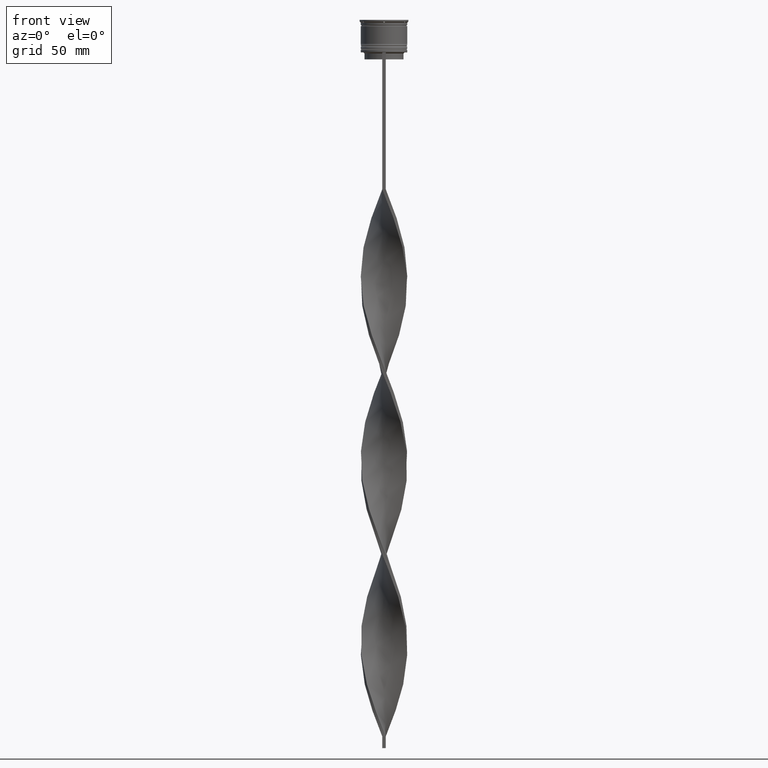
[diagram: clean part render]
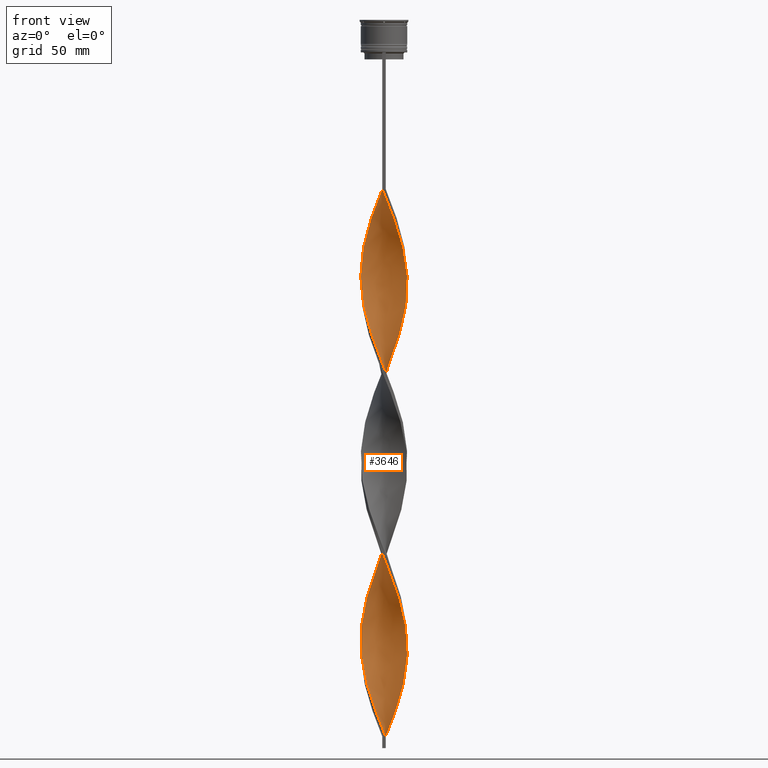
[diagram: same view with one face highlighted and labeled with its STEP entity id]
A machine part, front view. The second image highlights one B-rep face of the part: STEP entity #3646.
In plain terms, the highlighted face is a freeform B-spline surface patch.
Its self-contained STEP definition (entity closure, byte-faithful):
#1 = CARTESIAN_POINT ( 'NONE',  ( -0.8235783949559565276, -9.994209254731547531, -147.7333333333333201 ) ) ;
#9 = CARTESIAN_POINT ( 'NONE',  ( 9.250558116688344157, 3.871650104254193980, -124.1333333333333400 ) ) ;
#13 = CARTESIAN_POINT ( 'NONE',  ( 1.537017068246186113, 9.940973719881544213, -149.7000000000000171 ) ) ;
#24 = CARTESIAN_POINT ( 'NONE',  ( -1.610139721665727608, -9.929392229344633947, -145.7666666666666515 ) ) ;
#26 = CARTESIAN_POINT ( 'NONE',  ( 8.531008882968826867, -5.271089777143521005, -175.2666666666666799 ) ) ;
#31 = CARTESIAN_POINT ( 'NONE',  ( 5.208159890536745884, 8.569572367079022257, -139.8666666666666742 ) ) ;
#48 = CARTESIAN_POINT ( 'NONE',  ( -8.569572367079016928, -5.208159890536742331, -281.4666666666666401 ) ) ;
#51 = CARTESIAN_POINT ( 'NONE',  ( -3.143615391390492508, -9.555263588120853413, -141.8333333333333428 ) ) ;
#61 = CARTESIAN_POINT ( 'NONE',  ( 10.00000000000000533, -0.7500000000000005551, -112.3333333333333428 ) ) ;
#74 = CARTESIAN_POINT ( 'NONE',  ( -8.116165120681836598, 5.942494737169148777, -251.9666666666666970 ) ) ;
#78 = CARTESIAN_POINT ( 'NONE',  ( 2.305110905848660519, -9.759557557171204323, -155.6000000000000227 ) ) ;
#87 = CARTESIAN_POINT ( 'NONE',  ( -4.533719918490549006, -8.979463439879781461, -220.5000000000000284 ) ) ;
#96 = CARTESIAN_POINT ( 'NONE',  ( -3.803462330970837968, 9.278802417170323835, -238.1999999999999886 ) ) ;
#99 = CARTESIAN_POINT ( 'NONE',  ( -2.376877556528109725, -9.742327908732745456, -301.1333333333333258 ) ) ;
#107 = CARTESIAN_POINT ( 'NONE',  ( -3.803462330970843741, -9.278802417170329164, -222.4666666666666686 ) ) ;
#109 = ORIENTED_EDGE ( 'NONE', *, *, #476, .F. ) ;
#117 = CARTESIAN_POINT ( 'NONE',  ( -9.940973719881535331, -1.537017068246183449, -271.6333333333332689 ) ) ;
#121 = CARTESIAN_POINT ( 'NONE',  ( -8.531008882968828644, 5.271089777143520116, -253.9333333333333371 ) ) ;
#122 = CARTESIAN_POINT ( 'NONE',  ( 7.601397897755390431, 6.540737725975568573, -132.0000000000000000 ) ) ;
#135 = CARTESIAN_POINT ( 'NONE',  ( -8.531008882968833973, -5.271089777143521893, -206.7333333333333201 ) ) ;
#142 = CARTESIAN_POINT ( 'NONE',  ( -9.742327908732745456, 2.376877556528109725, -261.7999999999999545 ) ) ;
#144 = CARTESIAN_POINT ( 'NONE',  ( -8.945852645255820690, 4.599684817117893232, -255.9000000000000625 ) ) ;
#145 = CARTESIAN_POINT ( 'NONE',  ( -8.569572367079022257, 5.208159890536746772, -179.1999999999999886 ) ) ;
#151 = CARTESIAN_POINT ( 'NONE',  ( 10.00000000000000533, -0.7500000000000005551, -269.6666666666666856 ) ) ;
#162 = CARTESIAN_POINT ( 'NONE',  ( -7.138980714781979486, -7.086630674828934495, -287.3666666666667311 ) ) ;
#163 = CARTESIAN_POINT ( 'NONE',  ( 3.871650104254193980, -9.250558116688344157, -242.1333333333333258 ) ) ;
#169 = CARTESIAN_POINT ( 'NONE',  ( 3.871650104254193980, -9.250558116688344157, -242.1333333333333258 ) ) ;
#172 = CARTESIAN_POINT ( 'NONE',  ( -0.7499999999999997780, 9.999999999999998224, -73.00000000000001421 ) ) ;
#181 = CARTESIAN_POINT ( 'NONE',  ( 9.940973719881535331, 1.537017068246186779, -192.9666666666666970 ) ) ;
#182 = CARTESIAN_POINT ( 'NONE',  ( -8.531008882968833973, -5.271089777143521893, -206.7333333333333201 ) ) ;
#206 = CARTESIAN_POINT ( 'NONE',  ( 0.7499999999999985567, -9.999999999999998224, -309.0000000000000000 ) ) ;
#207 = CARTESIAN_POINT ( 'NONE',  ( 4.599684817117895896, -8.945852645255826019, -244.0999999999999659 ) ) ;
#225 = CARTESIAN_POINT ( 'NONE',  ( -0.7499999999999997780, 9.999999999999998224, -73.00000000000001421 ) ) ;
#241 = CARTESIAN_POINT ( 'NONE',  ( -3.803462330970837968, 9.278802417170323835, -80.86666666666667425 ) ) ;
#264 = CARTESIAN_POINT ( 'NONE',  ( -7.138980714781979486, -7.086630674828935383, -130.0333333333333314 ) ) ;
#284 = CARTESIAN_POINT ( 'NONE',  ( -9.940973719881535331, -1.537017068246183449, -114.3000000000000398 ) ) ;
#306 = CARTESIAN_POINT ( 'NONE',  ( -9.994209254731549308, 0.8235783949559557504, -108.3999999999999915 ) ) ;
#310 = CARTESIAN_POINT ( 'NONE',  ( 1.537017068246183005, -9.940973719881535331, -153.6333333333333826 ) ) ;
#319 = CARTESIAN_POINT ( 'NONE',  ( 8.979463439879785014, -4.533719918490543677, -102.5000000000000142 ) ) ;
#331 = CARTESIAN_POINT ( 'NONE',  ( -9.759557557171204323, -2.305110905848660963, -116.2666666666666657 ) ) ;
#336 = CARTESIAN_POINT ( 'NONE',  ( 6.484615268705939073, -7.649331004530118605, -167.4000000000000057 ) ) ;
#343 = CARTESIAN_POINT ( 'NONE',  ( 8.979463439879786790, -4.533719918490542788, -102.5000000000000000 ) ) ;
#346 = CARTESIAN_POINT ( 'NONE',  ( 9.250558116688344157, 3.871650104254193980, -124.1333333333333400 ) ) ;
#357 = CARTESIAN_POINT ( 'NONE',  ( -3.143615391390492508, -9.555263588120853413, -141.8333333333333144 ) ) ;
#359 = CARTESIAN_POINT ( 'NONE',  ( -0.7499999999999997780, 9.999999999999998224, -73.00000000000001421 ) ) ;
#365 = CARTESIAN_POINT ( 'NONE',  ( 7.649331004530123934, -6.484615268705944402, -96.60000000000000853 ) ) ;
#368 = CARTESIAN_POINT ( 'NONE',  ( 4.599684817117895896, -8.945852645255826019, -86.76666666666666572 ) ) ;
#377 = CARTESIAN_POINT ( 'NONE',  ( -5.882599862582948980, 8.159681294278261277, -244.0999999999999659 ) ) ;
#380 = CARTESIAN_POINT ( 'NONE',  ( -9.994209254731549308, 0.8235783949559557504, -108.3999999999999915 ) ) ;
#404 = CARTESIAN_POINT ( 'NONE',  ( -6.540737725975564132, -7.601397897755384214, -132.0000000000000000 ) ) ;
#413 = CARTESIAN_POINT ( 'NONE',  ( 4.533719918490543677, 8.979463439879785014, -299.1666666666666856 ) ) ;
#425 = CARTESIAN_POINT ( 'NONE',  ( -1.537017068246184115, 9.940973719881535331, -232.3000000000000114 ) ) ;
#429 = CARTESIAN_POINT ( 'NONE',  ( -5.942494737169149666, -8.116165120681838374, -291.3000000000000682 ) ) ;
#436 = CARTESIAN_POINT ( 'NONE',  ( -10.05902628011846822, -0.03701706824618764685, -192.9666666666666970 ) ) ;
#446 = CARTESIAN_POINT ( 'NONE',  ( -0.8235783949559565276, -9.994209254731547531, -305.0666666666666629 ) ) ;
#449 = CARTESIAN_POINT ( 'NONE',  ( 1.610139721665724055, 9.929392229344635723, -224.4333333333333371 ) ) ;
#450 = CARTESIAN_POINT ( 'NONE',  ( -9.278802417170329164, 3.803462330970842409, -183.1333333333333258 ) ) ;
#458 = CARTESIAN_POINT ( 'NONE',  ( -9.742327908732752562, -2.376877556528108837, -198.8666666666666742 ) ) ;
#465 = CARTESIAN_POINT ( 'NONE',  ( -5.942494737169149666, -8.116165120681838374, -291.3000000000000682 ) ) ;
#469 = CARTESIAN_POINT ( 'NONE',  ( 8.569572367079016928, 5.208159890536742331, -202.8000000000000114 ) ) ;
#470 = CARTESIAN_POINT ( 'NONE',  ( 9.929392229344641052, 1.610139721665727164, -118.2333333333333343 ) ) ;
#476 = EDGE_CURVE ( 'NONE', #1595, #1942, #2447, .T. ) ;
#482 = CARTESIAN_POINT ( 'NONE',  ( 4.599684817117895896, -8.945852645255826019, -244.0999999999999943 ) ) ;
#493 = CARTESIAN_POINT ( 'NONE',  ( 9.742327908732745456, -2.376877556528110169, -183.1333333333333258 ) ) ;
#494 = CARTESIAN_POINT ( 'NONE',  ( -9.759557557171209652, 2.305110905848664071, -187.0666666666666629 ) ) ;
#501 = CARTESIAN_POINT ( 'NONE',  ( 9.994209254731556413, 0.8235783949559556394, -273.5999999999999659 ) ) ;
#512 = CARTESIAN_POINT ( 'NONE',  ( 9.578141394460873315, 3.073204743451133591, -196.9000000000000057 ) ) ;
#513 = CARTESIAN_POINT ( 'NONE',  ( 3.143615391390493841, -9.555263588120860518, -240.1666666666667140 ) ) ;
#531 = ORIENTED_EDGE ( 'NONE', *, *, #2821, .T. ) ;
#535 = CARTESIAN_POINT ( 'NONE',  ( 9.278802417170329164, -3.803462330970841521, -261.7999999999999545 ) ) ;
#540 = VECTOR ( 'NONE', #1773, 1000.000000000000000 ) ;
#556 = CARTESIAN_POINT ( 'NONE',  ( 1.537017068246185891, 9.940973719881544213, -307.0333333333333030 ) ) ;
#572 = CARTESIAN_POINT ( 'NONE',  ( 5.942494737169153218, -8.116165120681840150, -248.0333333333333314 ) ) ;
#580 = CARTESIAN_POINT ( 'NONE',  ( 1.537017068246186113, 9.940973719881544213, -307.0333333333333030 ) ) ;
#589 = CARTESIAN_POINT ( 'NONE',  ( 9.929392229344635723, -1.610139721665723833, -185.0999999999999659 ) ) ;
#609 = CARTESIAN_POINT ( 'NONE',  ( 5.942494737169153218, 8.116165120681833045, -212.6333333333333826 ) ) ;
#631 = CARTESIAN_POINT ( 'NONE',  ( -0.03701706824618591213, -10.05902628011846112, -149.7000000000000455 ) ) ;
#634 = CARTESIAN_POINT ( 'NONE',  ( -9.578141394460871538, -3.073204743451138476, -118.2333333333333485 ) ) ;
#638 = CARTESIAN_POINT ( 'NONE',  ( 0.03701706824618514885, -10.05902628011846822, -74.96666666666668277 ) ) ;
#641 = CARTESIAN_POINT ( 'NONE',  ( 0.8235783949559563055, -9.994209254731556413, -76.93333333333333712 ) ) ;
#653 = CARTESIAN_POINT ( 'NONE',  ( 9.250558116688337051, -3.871650104254192648, -179.1999999999999886 ) ) ;
#662 = CARTESIAN_POINT ( 'NONE',  ( -7.138980714781982151, 7.086630674828944265, -173.3000000000000114 ) ) ;
#665 = CARTESIAN_POINT ( 'NONE',  ( 9.278802417170329164, -3.803462330970841521, -104.4666666666666828 ) ) ;
#677 = CARTESIAN_POINT ( 'NONE',  ( -9.578141394460871538, -3.073204743451138476, -118.2333333333333343 ) ) ;
#680 = CARTESIAN_POINT ( 'NONE',  ( -10.05902628011846112, 0.03701706824618515579, -110.3666666666666742 ) ) ;
#686 = CARTESIAN_POINT ( 'NONE',  ( 2.376877556528110169, -9.742327908732750785, -80.86666666666667425 ) ) ;
#698 = CARTESIAN_POINT ( 'NONE',  ( -3.143615391390492508, -9.555263588120853413, -299.1666666666666856 ) ) ;
#701 = CARTESIAN_POINT ( 'NONE',  ( -1.537017068246184115, 9.940973719881535331, -74.96666666666668277 ) ) ;
#711 = CARTESIAN_POINT ( 'NONE',  ( -0.8235783949559550843, 9.994209254731556413, -155.6000000000000227 ) ) ;
#746 = CARTESIAN_POINT ( 'NONE',  ( -4.599684817117893232, -8.945852645255820690, -295.2333333333333485 ) ) ;
#754 = CARTESIAN_POINT ( 'NONE',  ( 7.138980714781985704, -7.086630674828939824, -251.9666666666666686 ) ) ;
#764 = CARTESIAN_POINT ( 'NONE',  ( -9.994209254731549308, 0.8235783949559557504, -265.7333333333333485 ) ) ;
#767 =( BOUNDED_CURVE ( )  B_SPLINE_CURVE ( 2, ( #359, #701, #1629, #2320, #1976, #2024, #956, #3020, #2045, #2275, #1953, #3602, #2622, #3649, #3951, #3046, #981, #3349, #380, #680, #3299, #2951, #3973, #634, #3370, #2296, #2345, #1680, #3998, #3624, #404, #1699, #1030, #2002, #1002, #51, #3327, #2998, #1725, #1375, #2695, #310, #78, #1052, #1397, #2715, #3276, #4275, #336, #1656, #2976, #2668, #26, #1831, #3778, #3149, #493, #1093, #4066, #833, #2157, #181, #1416, #512, #3434, #1482, #469, #4090, #2735, #2409, #3739, #768, #1117, #2094, #1767, #1157, #2114, #449, #3759, #4112, #1136, #2430, #1813, #1790, #3084, #809, #3802, #3416, #1504, #3110, #3476, #1748, #121, #144, #4042, #2450, #3395, #2073, #1441, #1070, #789, #2760, #3716, #1462, #2780, #2136, #3455, #3129, #2385, #162, #2470, #429, #2799, #746, #4131, #3065, #99, #1906, #3248, #3881, #206 ),
 .UNSPECIFIED., .F., .T. ) 
 B_SPLINE_CURVE_WITH_KNOTS ( ( 3, 2, 2, 2, 2, 2, 2, 2, 2, 2, 2, 2, 2, 2, 2, 2, 2, 2, 2, 2, 2, 2, 2, 2, 2, 2, 2, 2, 2, 2, 2, 2, 2, 2, 2, 2, 2, 2, 2, 2, 2, 2, 2, 2, 2, 2, 2, 2, 2, 2, 2, 2, 2, 2, 2, 2, 2, 2, 2, 2, 3 ),
 ( 0.000000000000000000, 0.01250000000000000243, 0.02500000000000000486, 0.03749999999999999861, 0.05000000000000000971, 0.06250000000000000000, 0.07499999999999999722, 0.08749999999999998057, 0.1000000000000000194, 0.1125000000000000028, 0.1250000000000000000, 0.1375000000000000111, 0.1499999999999999944, 0.1625000000000000056, 0.1749999999999999611, 0.1875000000000000000, 0.2000000000000000389, 0.2124999999999999944, 0.2250000000000000056, 0.2374999999999999611, 0.2500000000000000000, 0.2625000000000000111, 0.2750000000000000222, 0.2874999999999999778, 0.2999999999999999889, 0.3125000000000000000, 0.3250000000000000111, 0.3375000000000000777, 0.3499999999999999223, 0.3624999999999999889, 0.3750000000000000000, 0.3875000000000000111, 0.4000000000000000777, 0.4124999999999999223, 0.4249999999999999889, 0.4375000000000000000, 0.4500000000000000111, 0.4625000000000000777, 0.4749999999999999223, 0.4874999999999999889, 0.5000000000000000000, 0.5124999999999999556, 0.5250000000000000222, 0.5374999999999999778, 0.5500000000000000444, 0.5625000000000000000, 0.5749999999999999556, 0.5875000000000000222, 0.5999999999999999778, 0.6125000000000000444, 0.6250000000000000000, 0.6374999999999999556, 0.6500000000000000222, 0.6624999999999999778, 0.6750000000000001554, 0.6875000000000000000, 0.6999999999999998446, 0.7125000000000000222, 0.7249999999999999778, 0.7375000000000001554, 0.7500000000000000000 ),
 .UNSPECIFIED. ) 
 CURVE ( )  GEOMETRIC_REPRESENTATION_ITEM ( )  RATIONAL_B_SPLINE_CURVE ( ( 1.000000000000000000, 0.9969173337331279638, 1.000000000000000000, 0.9969173337331279638, 1.000000000000000000, 0.9969173337331279638, 1.000000000000000000, 0.9969173337331279638, 1.000000000000000000, 0.9969173337331279638, 1.000000000000000000, 0.9969173337331279638, 1.000000000000000000, 0.9969173337331279638, 1.000000000000000000, 0.9969173337331279638, 1.000000000000000000, 0.9969173337331279638, 1.000000000000000000, 0.9969173337331279638, 1.000000000000000000, 0.9969173337331279638, 1.000000000000000000, 0.9969173337331279638, 1.000000000000000000, 0.9969173337331279638, 1.000000000000000000, 0.9969173337331279638, 1.000000000000000000, 0.9969173337331279638, 1.000000000000000000, 0.9969173337331279638, 1.000000000000000000, 0.9969173337331279638, 1.000000000000000000, 0.9969173337331279638, 1.000000000000000000, 0.9969173337331279638, 1.000000000000000000, 0.9969173337331279638, 1.000000000000000000, 0.9969173337331279638, 1.000000000000000000, 0.9969173337331279638, 1.000000000000000000, 0.9969173337331279638, 1.000000000000000000, 0.9969173337331279638, 1.000000000000000000, 0.9969173337331279638, 1.000000000000000000, 0.9969173337331279638, 1.000000000000000000, 0.9969173337331279638, 1.000000000000000000, 0.9969173337331279638, 1.000000000000000000, 0.9969173337331279638, 1.000000000000000000, 0.9969173337331279638, 1.000000000000000000, 0.9969173337331279638, 1.000000000000000000, 0.9969173337331279638, 1.000000000000000000, 0.9969173337331279638, 1.000000000000000000, 0.9969173337331279638, 1.000000000000000000, 0.9969173337331279638, 1.000000000000000000, 0.9969173337331279638, 1.000000000000000000, 0.9969173337331279638, 1.000000000000000000, 0.9969173337331279638, 1.000000000000000000, 0.9969173337331279638, 1.000000000000000000, 0.9969173337331279638, 1.000000000000000000, 0.9969173337331279638, 1.000000000000000000, 0.9969173337331279638, 1.000000000000000000, 0.9969173337331279638, 1.000000000000000000, 0.9969173337331279638, 1.000000000000000000, 0.9969173337331279638, 1.000000000000000000, 0.9969173337331279638, 1.000000000000000000, 0.9969173337331279638, 1.000000000000000000, 0.9969173337331279638, 1.000000000000000000, 0.9969173337331279638, 1.000000000000000000, 0.9969173337331279638, 1.000000000000000000, 0.9969173337331279638, 1.000000000000000000, 0.9969173337331279638, 1.000000000000000000, 0.9969173337331279638, 1.000000000000000000, 0.9969173337331279638, 1.000000000000000000, 0.9969173337331279638, 1.000000000000000000, 0.9969173337331279638, 1.000000000000000000, 0.9969173337331279638, 1.000000000000000000, 0.9969173337331279638, 1.000000000000000000, 0.9969173337331279638, 1.000000000000000000, 0.9969173337331279638, 1.000000000000000000 ) ) 
 REPRESENTATION_ITEM ( '' )  );
#768 = CARTESIAN_POINT ( 'NONE',  ( 5.942494737169153218, 8.116165120681833045, -212.6333333333333826 ) ) ;
#769 = CARTESIAN_POINT ( 'NONE',  ( 9.555263588120860518, 3.143615391390493397, -122.1666666666666998 ) ) ;
#773 = CARTESIAN_POINT ( 'NONE',  ( -0.7499999999999997780, -10.00000000000000533, -73.00000000000001421 ) ) ;
#776 = CARTESIAN_POINT ( 'NONE',  ( 5.942494737169153218, -8.116165120681841927, -248.0333333333333599 ) ) ;
#786 = CARTESIAN_POINT ( 'NONE',  ( -4.599684817117893232, -8.945852645255818913, -295.2333333333332916 ) ) ;
#789 = CARTESIAN_POINT ( 'NONE',  ( -9.999999999999998224, -0.7499999999999991118, -269.6666666666666856 ) ) ;
#790 = CARTESIAN_POINT ( 'NONE',  ( -0.8235783949559551953, 9.994209254731556413, -155.6000000000000227 ) ) ;
#797 = CARTESIAN_POINT ( 'NONE',  ( 9.578141394460876867, -3.073204743451141585, -263.7666666666667084 ) ) ;
#809 = CARTESIAN_POINT ( 'NONE',  ( -4.533719918490539236, 8.979463439879777908, -240.1666666666666856 ) ) ;
#810 = CARTESIAN_POINT ( 'NONE',  ( -0.03701706824618396924, 10.05902628011846822, -153.6333333333333826 ) ) ;
#821 = CARTESIAN_POINT ( 'NONE',  ( 8.979463439879785014, -4.533719918490543677, -259.8333333333334281 ) ) ;
#829 = CARTESIAN_POINT ( 'NONE',  ( 0.7499999999999985567, -9.999999999999998224, -309.0000000000000000 ) ) ;
#833 = CARTESIAN_POINT ( 'NONE',  ( 10.05902628011846289, -0.03701706824619090813, -189.0333333333333314 ) ) ;
#834 = CARTESIAN_POINT ( 'NONE',  ( 7.138980714781985704, -7.086630674828940712, -251.9666666666666970 ) ) ;
#843 = CARTESIAN_POINT ( 'NONE',  ( 2.305110905848663627, 9.759557557171209652, -305.0666666666666629 ) ) ;
#849 = CARTESIAN_POINT ( 'NONE',  ( 0.7500000000000002220, 3.333333333333337478, -309.0000000000000000 ) ) ;
#856 = CARTESIAN_POINT ( 'NONE',  ( 5.882599862582953421, 8.159681294278264829, -295.2333333333332916 ) ) ;
#874 = CARTESIAN_POINT ( 'NONE',  ( 3.803462330970841521, 9.278802417170329164, -301.1333333333333258 ) ) ;
#883 = CARTESIAN_POINT ( 'NONE',  ( 1.610139721665727608, -9.929392229344639276, -78.90000000000003411 ) ) ;
#897 = CARTESIAN_POINT ( 'NONE',  ( 10.05902628011846822, 0.03701706824618451047, -271.6333333333332689 ) ) ;
#912 = CARTESIAN_POINT ( 'NONE',  ( -3.073204743451139365, 9.578141394460869762, -78.90000000000003411 ) ) ;
#922 = EDGE_LOOP ( 'NONE', ( #2701, #531, #109, #2661 ) ) ;
#928 = CARTESIAN_POINT ( 'NONE',  ( 8.531008882968826867, -5.271089777143521005, -175.2666666666666799 ) ) ;
#952 = CARTESIAN_POINT ( 'NONE',  ( -9.999999999999998224, -0.7499999999999991118, -112.3333333333333428 ) ) ;
#956 = CARTESIAN_POINT ( 'NONE',  ( -5.208159890536742331, 8.569572367079016928, -84.80000000000001137 ) ) ;
#966 = CARTESIAN_POINT ( 'NONE',  ( 9.555263588120860518, 3.143615391390493397, -122.1666666666666856 ) ) ;
#977 = CARTESIAN_POINT ( 'NONE',  ( -8.159681294278261277, -5.882599862582948980, -126.1000000000000369 ) ) ;
#981 = CARTESIAN_POINT ( 'NONE',  ( -9.742327908732745456, 2.376877556528109725, -104.4666666666666828 ) ) ;
#986 = CARTESIAN_POINT ( 'NONE',  ( -8.945852645255827795, -4.599684817117891455, -204.7666666666666799 ) ) ;
#989 = CARTESIAN_POINT ( 'NONE',  ( -4.599684817117894120, 8.945852645255826019, -165.4333333333333371 ) ) ;
#1000 = CARTESIAN_POINT ( 'NONE',  ( -4.599684817117893232, -8.945852645255818913, -137.9000000000000625 ) ) ;
#1002 = CARTESIAN_POINT ( 'NONE',  ( -3.871650104254192648, -9.250558116688337051, -139.8666666666666742 ) ) ;
#1008 = CARTESIAN_POINT ( 'NONE',  ( 7.086630674828940712, 7.138980714781985704, -133.9666666666666686 ) ) ;
#1012 = CARTESIAN_POINT ( 'NONE',  ( -1.610139721665726498, 9.929392229344642828, -157.5666666666666913 ) ) ;
#1026 = CARTESIAN_POINT ( 'NONE',  ( -3.871650104254192648, -9.250558116688337051, -139.8666666666666742 ) ) ;
#1030 = CARTESIAN_POINT ( 'NONE',  ( -5.271089777143521005, -8.531008882968826867, -135.9333333333333371 ) ) ;
#1038 = CARTESIAN_POINT ( 'NONE',  ( 7.138980714781985704, -7.086630674828939824, -94.63333333333335418 ) ) ;
#1052 = CARTESIAN_POINT ( 'NONE',  ( 3.073204743451138476, -9.578141394460871538, -157.5666666666666913 ) ) ;
#1060 = CARTESIAN_POINT ( 'NONE',  ( -3.871650104254193092, 9.250558116688344157, -163.4666666666666401 ) ) ;
#1068 = CARTESIAN_POINT ( 'NONE',  ( -8.945852645255818913, 4.599684817117893232, -255.9000000000000909 ) ) ;
#1070 = CARTESIAN_POINT ( 'NONE',  ( -10.05902628011846112, 0.03701706824618515579, -267.6999999999999318 ) ) ;
#1079 = CARTESIAN_POINT ( 'NONE',  ( 9.929392229344642828, 1.610139721665726942, -275.5666666666666060 ) ) ;
#1093 = CARTESIAN_POINT ( 'NONE',  ( 9.929392229344635723, -1.610139721665723833, -185.0999999999999943 ) ) ;
#1094 = CARTESIAN_POINT ( 'NONE',  ( -5.942494737169152330, 8.116165120681840150, -169.3666666666667027 ) ) ;
#1105 = CARTESIAN_POINT ( 'NONE',  ( -8.569572367079022257, 5.208159890536746772, -179.1999999999999886 ) ) ;
#1115 = CARTESIAN_POINT ( 'NONE',  ( -9.759557557171204323, -2.305110905848660963, -273.5999999999999659 ) ) ;
#1117 = CARTESIAN_POINT ( 'NONE',  ( 5.271089777143521893, 8.531008882968826867, -214.5999999999999943 ) ) ;
#1118 = CARTESIAN_POINT ( 'NONE',  ( 8.159681294278264829, -5.882599862582953421, -98.56666666666669130 ) ) ;
#1125 = CARTESIAN_POINT ( 'NONE',  ( 0.03701706824618504477, -10.05902628011846822, -232.3000000000000398 ) ) ;
#1131 = VERTEX_POINT ( 'NONE', #4114 ) ;
#1136 = CARTESIAN_POINT ( 'NONE',  ( -0.7499999999999997780, 9.999999999999998224, -230.3333333333333428 ) ) ;
#1137 = CARTESIAN_POINT ( 'NONE',  ( -8.979463439879783238, 4.533719918490548118, -181.1666666666667140 ) ) ;
#1143 = CARTESIAN_POINT ( 'NONE',  ( -2.305110905848664515, -9.759557557171209652, -226.3999999999999773 ) ) ;
#1157 = CARTESIAN_POINT ( 'NONE',  ( 3.143615391390497837, 9.555263588120851637, -220.5000000000000284 ) ) ;
#1158 = CARTESIAN_POINT ( 'NONE',  ( 9.994209254731556413, 0.8235783949559557504, -273.5999999999999659 ) ) ;
#1168 = CARTESIAN_POINT ( 'NONE',  ( -6.484615268705947067, -7.649331004530122158, -214.5999999999999943 ) ) ;
#1181 = CARTESIAN_POINT ( 'NONE',  ( 8.159681294278264829, -5.882599862582953421, -255.9000000000000909 ) ) ;
#1193 = CARTESIAN_POINT ( 'NONE',  ( 0.7499999999999994449, -3.333333333333330373, -309.0000000000000000 ) ) ;
#1199 = CARTESIAN_POINT ( 'NONE',  ( -7.601397897755391320, -6.540737725975566796, -210.6666666666666572 ) ) ;
#1218 = CARTESIAN_POINT ( 'NONE',  ( 8.979463439879786790, -4.533719918490542788, -259.8333333333334281 ) ) ;
#1239 = CARTESIAN_POINT ( 'NONE',  ( -5.882599862582948980, 8.159681294278261277, -86.76666666666666572 ) ) ;
#1256 = CARTESIAN_POINT ( 'NONE',  ( 6.540737725975565020, 7.601397897755383326, -210.6666666666666572 ) ) ;
#1272 = CARTESIAN_POINT ( 'NONE',  ( 7.086630674828935383, -7.138980714781981263, -169.3666666666667027 ) ) ;
#1289 = CARTESIAN_POINT ( 'NONE',  ( 1.610139721665727386, -9.929392229344641052, -78.90000000000001990 ) ) ;
#1300 = CARTESIAN_POINT ( 'NONE',  ( 1.537017068246182783, -9.940973719881535331, -153.6333333333333826 ) ) ;
#1310 = CARTESIAN_POINT ( 'NONE',  ( 0.7500000000000009992, 10.00000000000000533, -151.6666666666666856 ) ) ;
#1314 = CARTESIAN_POINT ( 'NONE',  ( 3.073204743451142029, 9.578141394460876867, -145.7666666666666515 ) ) ;
#1324 = CARTESIAN_POINT ( 'NONE',  ( 9.940973719881535331, 1.537017068246186557, -192.9666666666666970 ) ) ;
#1331 = CARTESIAN_POINT ( 'NONE',  ( 9.742327908732752562, 2.376877556528110169, -120.2000000000000028 ) ) ;
#1335 = CARTESIAN_POINT ( 'NONE',  ( -0.03701706824618385128, 10.05902628011846822, -153.6333333333333826 ) ) ;
#1347 = CARTESIAN_POINT ( 'NONE',  ( 5.882599862582947203, -8.159681294278261277, -165.4333333333333655 ) ) ;
#1356 = CARTESIAN_POINT ( 'NONE',  ( 1.537017068246185891, 9.940973719881544213, -149.7000000000000455 ) ) ;
#1360 = CARTESIAN_POINT ( 'NONE',  ( 0.03701706824618504477, -10.05902628011846822, -74.96666666666668277 ) ) ;
#1362 = VERTEX_POINT ( 'NONE', #172 ) ;
#1371 = CARTESIAN_POINT ( 'NONE',  ( -9.555263588120853413, 3.143615391390492064, -259.8333333333334281 ) ) ;
#1375 = CARTESIAN_POINT ( 'NONE',  ( -0.03701706824618591213, -10.05902628011846112, -149.7000000000000171 ) ) ;
#1381 = CARTESIAN_POINT ( 'NONE',  ( 6.484615268705946178, 7.649331004530122158, -135.9333333333333371 ) ) ;
#1392 = CARTESIAN_POINT ( 'NONE',  ( -4.533719918490539236, 8.979463439879779685, -240.1666666666667140 ) ) ;
#1397 = CARTESIAN_POINT ( 'NONE',  ( 3.803462330970837524, -9.278802417170323835, -159.5333333333333314 ) ) ;
#1405 = CARTESIAN_POINT ( 'NONE',  ( 5.882599862582952532, 8.159681294278264829, -295.2333333333333485 ) ) ;
#1413 = CARTESIAN_POINT ( 'NONE',  ( -7.601397897755385102, 6.540737725975564132, -250.0000000000000000 ) ) ;
#1416 = CARTESIAN_POINT ( 'NONE',  ( 9.759557557171204323, 2.305110905848659630, -194.9333333333333371 ) ) ;
#1425 = CARTESIAN_POINT ( 'NONE',  ( -8.979463439879781461, 4.533719918490548118, -181.1666666666666856 ) ) ;
#1438 = CARTESIAN_POINT ( 'NONE',  ( -6.484615268705940849, 7.649331004530118605, -246.0666666666666629 ) ) ;
#1441 = CARTESIAN_POINT ( 'NONE',  ( -9.994209254731549308, 0.8235783949559557504, -265.7333333333333485 ) ) ;
#1442 = CARTESIAN_POINT ( 'NONE',  ( 9.994209254731556413, 0.8235783949559557504, -116.2666666666666657 ) ) ;
#1453 = CARTESIAN_POINT ( 'NONE',  ( -8.159681294278266606, 5.882599862582948980, -177.2333333333333485 ) ) ;
#1462 = CARTESIAN_POINT ( 'NONE',  ( -9.578141394460871538, -3.073204743451138476, -275.5666666666666060 ) ) ;
#1463 = CARTESIAN_POINT ( 'NONE',  ( -9.940973719881542436, 1.537017068246190998, -189.0333333333333314 ) ) ;
#1470 = CARTESIAN_POINT ( 'NONE',  ( 10.05902628011846822, 0.03701706824618439945, -271.6333333333332689 ) ) ;
#1482 = CARTESIAN_POINT ( 'NONE',  ( 8.979463439879776132, 4.533719918490541900, -200.8333333333333428 ) ) ;
#1483 = CARTESIAN_POINT ( 'NONE',  ( -3.803462330970843297, -9.278802417170329164, -222.4666666666666686 ) ) ;
#1489 = CARTESIAN_POINT ( 'NONE',  ( -9.759557557171209652, 2.305110905848664071, -187.0666666666666629 ) ) ;
#1504 = CARTESIAN_POINT ( 'NONE',  ( -6.484615268705940849, 7.649331004530118605, -246.0666666666666629 ) ) ;
#1505 = CARTESIAN_POINT ( 'NONE',  ( -8.116165120681840150, -5.942494737169155883, -208.7000000000000171 ) ) ;
#1525 = CARTESIAN_POINT ( 'NONE',  ( 6.540737725975569461, -7.601397897755390431, -250.0000000000000000 ) ) ;
#1542 = CARTESIAN_POINT ( 'NONE',  ( -7.086630674828944265, -7.138980714781980375, -212.6333333333333826 ) ) ;
#1560 = CARTESIAN_POINT ( 'NONE',  ( 9.742327908732752562, 2.376877556528110169, -277.5333333333333030 ) ) ;
#1583 = CARTESIAN_POINT ( 'NONE',  ( -8.979463439879779685, -4.533719918490539236, -122.1666666666666998 ) ) ;
#1595 = VERTEX_POINT ( 'NONE', #2794 ) ;
#1602 = CARTESIAN_POINT ( 'NONE',  ( -9.278802417170323835, -3.803462330970837968, -120.2000000000000028 ) ) ;
#1624 = CARTESIAN_POINT ( 'NONE',  ( 9.994209254731547531, -0.8235783949559571937, -187.0666666666666629 ) ) ;
#1629 = CARTESIAN_POINT ( 'NONE',  ( -2.305110905848661851, 9.759557557171204323, -76.93333333333333712 ) ) ;
#1637 = CARTESIAN_POINT ( 'NONE',  ( 0.8235783949559564165, -9.994209254731556413, -76.93333333333333712 ) ) ;
#1641 = CARTESIAN_POINT ( 'NONE',  ( 10.05902628011846822, 0.03701706824618439945, -114.3000000000000256 ) ) ;
#1654 = CARTESIAN_POINT ( 'NONE',  ( 9.999999999999998224, 0.7499999999999980016, -191.0000000000000000 ) ) ;
#1656 = CARTESIAN_POINT ( 'NONE',  ( 7.086630674828934495, -7.138980714781981263, -169.3666666666667027 ) ) ;
#1663 = CARTESIAN_POINT ( 'NONE',  ( 9.278802417170329164, -3.803462330970841521, -104.4666666666666828 ) ) ;
#1666 = CARTESIAN_POINT ( 'NONE',  ( 3.803462330970841965, 9.278802417170329164, -143.7999999999999829 ) ) ;
#1677 = CARTESIAN_POINT ( 'NONE',  ( -9.555263588120853413, 3.143615391390492064, -102.5000000000000000 ) ) ;
#1680 = CARTESIAN_POINT ( 'NONE',  ( -8.159681294278259500, -5.882599862582948091, -126.1000000000000227 ) ) ;
#1686 = CARTESIAN_POINT ( 'NONE',  ( 5.882599862582953421, 8.159681294278264829, -137.9000000000000625 ) ) ;
#1697 = CARTESIAN_POINT ( 'NONE',  ( -7.086630674828936272, 7.138980714781979486, -248.0333333333333314 ) ) ;
#1699 = CARTESIAN_POINT ( 'NONE',  ( -5.942494737169149666, -8.116165120681838374, -133.9666666666666686 ) ) ;
#1709 = CARTESIAN_POINT ( 'NONE',  ( 2.376877556528110169, -9.742327908732750785, -80.86666666666667425 ) ) ;
#1725 = CARTESIAN_POINT ( 'NONE',  ( -0.8235783949559565276, -9.994209254731547531, -147.7333333333333201 ) ) ;
#1733 = CARTESIAN_POINT ( 'NONE',  ( 3.803462330970841965, 9.278802417170329164, -301.1333333333333258 ) ) ;
#1744 = CARTESIAN_POINT ( 'NONE',  ( -9.999999999999998224, -0.7499999999999991118, -269.6666666666666856 ) ) ;
#1748 = CARTESIAN_POINT ( 'NONE',  ( -8.116165120681836598, 5.942494737169148777, -251.9666666666666686 ) ) ;
#1755 = CARTESIAN_POINT ( 'NONE',  ( -9.929392229344644605, -1.610139721665721391, -196.9000000000000057 ) ) ;
#1767 = CARTESIAN_POINT ( 'NONE',  ( 3.871650104254193536, 9.250558116688337051, -218.5333333333333314 ) ) ;
#1769 = CARTESIAN_POINT ( 'NONE',  ( 9.578141394460876867, -3.073204743451141585, -106.4333333333333513 ) ) ;
#1773 = DIRECTION ( 'NONE',  ( 0.000000000000000000, 1.000000000000000000, 0.000000000000000000 ) ) ;
#1777 = CARTESIAN_POINT ( 'NONE',  ( -7.601397897755391320, -6.540737725975566796, -210.6666666666666572 ) ) ;
#1788 = CARTESIAN_POINT ( 'NONE',  ( -3.871650104254192648, -9.250558116688337051, -297.2000000000000455 ) ) ;
#1790 = CARTESIAN_POINT ( 'NONE',  ( -3.073204743451139365, 9.578141394460869762, -236.2333333333333485 ) ) ;
#1791 = CARTESIAN_POINT ( 'NONE',  ( -2.376877556528109725, 9.742327908732752562, -159.5333333333333314 ) ) ;
#1803 = CARTESIAN_POINT ( 'NONE',  ( 9.759557557171209652, -2.305110905848663627, -265.7333333333333485 ) ) ;
#1813 = CARTESIAN_POINT ( 'NONE',  ( -2.305110905848661851, 9.759557557171204323, -234.2666666666666515 ) ) ;
#1814 = CARTESIAN_POINT ( 'NONE',  ( -7.601397897755385102, 6.540737725975564132, -92.66666666666667140 ) ) ;
#1820 = CARTESIAN_POINT ( 'NONE',  ( 8.116165120681841927, 5.942494737169152330, -287.3666666666667311 ) ) ;
#1831 = CARTESIAN_POINT ( 'NONE',  ( 8.945852645255822466, -4.599684817117889679, -177.2333333333333485 ) ) ;
#1832 = CARTESIAN_POINT ( 'NONE',  ( -0.7499999999999997780, -10.00000000000000533, -230.3333333333333428 ) ) ;
#1853 = CARTESIAN_POINT ( 'NONE',  ( 7.649331004530123934, -6.484615268705944402, -253.9333333333333371 ) ) ;
#1872 = CARTESIAN_POINT ( 'NONE',  ( 0.7500000000000009992, 10.00000000000000533, -309.0000000000000000 ) ) ;
#1890 = CARTESIAN_POINT ( 'NONE',  ( -1.537017068246184115, 9.940973719881535331, -74.96666666666668277 ) ) ;
#1906 = CARTESIAN_POINT ( 'NONE',  ( -1.610139721665727608, -9.929392229344633947, -303.0999999999999659 ) ) ;
#1907 = CARTESIAN_POINT ( 'NONE',  ( 8.979463439879777908, 4.533719918490541900, -200.8333333333333428 ) ) ;
#1931 = CARTESIAN_POINT ( 'NONE',  ( -7.649331004530118605, -6.484615268705939073, -128.0666666666666629 ) ) ;
#1942 = VERTEX_POINT ( 'NONE', #3013 ) ;
#1950 = CARTESIAN_POINT ( 'NONE',  ( -8.531008882968828644, 5.271089777143520116, -96.60000000000000853 ) ) ;
#1953 = CARTESIAN_POINT ( 'NONE',  ( -7.601397897755385102, 6.540737725975564132, -92.66666666666667140 ) ) ;
#1960 = CARTESIAN_POINT ( 'NONE',  ( 5.208159890536745884, 8.569572367079022257, -139.8666666666666742 ) ) ;
#1971 = CARTESIAN_POINT ( 'NONE',  ( -2.376877556528109725, -9.742327908732745456, -143.7999999999999829 ) ) ;
#1976 = CARTESIAN_POINT ( 'NONE',  ( -3.803462330970837968, 9.278802417170323835, -80.86666666666667425 ) ) ;
#1983 = CARTESIAN_POINT ( 'NONE',  ( 7.138980714781985704, -7.086630674828940712, -94.63333333333335418 ) ) ;
#1987 = CARTESIAN_POINT ( 'NONE',  ( 3.143615391390493841, -9.555263588120860518, -82.83333333333335702 ) ) ;
#1999 = CARTESIAN_POINT ( 'NONE',  ( 9.555263588120851637, -3.143615391390496949, -181.1666666666667140 ) ) ;
#2002 = CARTESIAN_POINT ( 'NONE',  ( -4.599684817117893232, -8.945852645255820690, -137.9000000000000625 ) ) ;
#2008 = CARTESIAN_POINT ( 'NONE',  ( 6.540737725975569461, -7.601397897755390431, -92.66666666666667140 ) ) ;
#2011 = CARTESIAN_POINT ( 'NONE',  ( -5.942494737169152330, 8.116165120681841927, -169.3666666666667027 ) ) ;
#2022 = CARTESIAN_POINT ( 'NONE',  ( 1.610139721665724277, 9.929392229344635723, -224.4333333333333655 ) ) ;
#2024 = CARTESIAN_POINT ( 'NONE',  ( -4.533719918490539236, 8.979463439879777908, -82.83333333333335702 ) ) ;
#2033 = CARTESIAN_POINT ( 'NONE',  ( 9.940973719881544213, -1.537017068246185447, -110.3666666666666742 ) ) ;
#2042 = CARTESIAN_POINT ( 'NONE',  ( 0.03701706824619144937, 10.05902628011846289, -228.3666666666666458 ) ) ;
#2045 = CARTESIAN_POINT ( 'NONE',  ( -6.484615268705940849, 7.649331004530118605, -88.73333333333334849 ) ) ;
#2057 = CARTESIAN_POINT ( 'NONE',  ( 7.086630674828940712, 7.138980714781985704, -291.3000000000000682 ) ) ;
#2069 = CARTESIAN_POINT ( 'NONE',  ( -2.376877556528109725, -9.742327908732745456, -301.1333333333333258 ) ) ;
#2073 = CARTESIAN_POINT ( 'NONE',  ( -9.929392229344633947, 1.610139721665727164, -263.7666666666667084 ) ) ;
#2075 = EDGE_CURVE ( 'NONE', #1131, #1595, #2841, .T. ) ;
#2082 = CARTESIAN_POINT ( 'NONE',  ( -9.994209254731556413, -0.8235783949559544181, -194.9333333333333371 ) ) ;
#2094 = CARTESIAN_POINT ( 'NONE',  ( 4.599684817117890567, 8.945852645255822466, -216.5666666666666629 ) ) ;
#2095 = CARTESIAN_POINT ( 'NONE',  ( 8.945852645255826019, 4.599684817117895896, -126.1000000000000369 ) ) ;
#2103 = CARTESIAN_POINT ( 'NONE',  ( 7.649331004530123934, -6.484615268705944402, -253.9333333333333371 ) ) ;
#2111 = CARTESIAN_POINT ( 'NONE',  ( -2.305110905848661851, 9.759557557171204323, -234.2666666666666515 ) ) ;
#2114 = CARTESIAN_POINT ( 'NONE',  ( 2.376877556528111057, 9.742327908732745456, -222.4666666666666686 ) ) ;
#2115 = CARTESIAN_POINT ( 'NONE',  ( -1.610139721665726720, 9.929392229344641052, -157.5666666666666629 ) ) ;
#2124 = CARTESIAN_POINT ( 'NONE',  ( -9.578141394460878644, 3.073204743451138921, -185.0999999999999943 ) ) ;
#2136 = CARTESIAN_POINT ( 'NONE',  ( -8.979463439879777908, -4.533719918490539236, -279.4999999999999432 ) ) ;
#2137 = CARTESIAN_POINT ( 'NONE',  ( -7.649331004530122158, 6.484615268705946178, -175.2666666666666799 ) ) ;
#2146 = CARTESIAN_POINT ( 'NONE',  ( -5.208159890536746772, -8.569572367079022257, -218.5333333333333314 ) ) ;
#2157 = CARTESIAN_POINT ( 'NONE',  ( 9.999999999999998224, 0.7499999999999980016, -191.0000000000000000 ) ) ;
#2158 = CARTESIAN_POINT ( 'NONE',  ( 9.555263588120860518, 3.143615391390493397, -279.4999999999999432 ) ) ;
#2179 = CARTESIAN_POINT ( 'NONE',  ( 2.376877556528110169, -9.742327908732750785, -238.1999999999999886 ) ) ;
#2200 = CARTESIAN_POINT ( 'NONE',  ( 3.073204743451142029, 9.578141394460876867, -303.0999999999999659 ) ) ;
#2218 = CARTESIAN_POINT ( 'NONE',  ( 2.305110905848663627, 9.759557557171209652, -305.0666666666666629 ) ) ;
#2224 = CARTESIAN_POINT ( 'NONE',  ( 3.073204743451142029, 9.578141394460876867, -303.0999999999999659 ) ) ;
#2231 = CARTESIAN_POINT ( 'NONE',  ( -2.305110905848664515, -9.759557557171209652, -226.3999999999999773 ) ) ;
#2250 = CARTESIAN_POINT ( 'NONE',  ( 8.569572367079016928, 5.208159890536742331, -202.8000000000000114 ) ) ;
#2272 = CARTESIAN_POINT ( 'NONE',  ( 7.601397897755384214, -6.540737725975565020, -171.3333333333333428 ) ) ;
#2275 = CARTESIAN_POINT ( 'NONE',  ( -7.086630674828935383, 7.138980714781979486, -90.70000000000001705 ) ) ;
#2283 = CARTESIAN_POINT ( 'NONE',  ( 7.086630674828940712, 7.138980714781985704, -133.9666666666666686 ) ) ;
#2293 = CARTESIAN_POINT ( 'NONE',  ( 0.7499999999999985567, -9.999999999999998224, -151.6666666666666856 ) ) ;
#2296 = CARTESIAN_POINT ( 'NONE',  ( -8.979463439879777908, -4.533719918490539236, -122.1666666666666856 ) ) ;
#2301 = CARTESIAN_POINT ( 'NONE',  ( -9.250558116688345933, -3.871650104254193092, -202.8000000000000114 ) ) ;
#2304 = CARTESIAN_POINT ( 'NONE',  ( -6.540737725975568573, 7.601397897755391320, -171.3333333333333428 ) ) ;
#2317 = CARTESIAN_POINT ( 'NONE',  ( 2.305110905848660519, -9.759557557171204323, -155.6000000000000227 ) ) ;
#2320 = CARTESIAN_POINT ( 'NONE',  ( -3.073204743451139365, 9.578141394460869762, -78.90000000000001990 ) ) ;
#2326 = CARTESIAN_POINT ( 'NONE',  ( 3.073204743451142029, 9.578141394460876867, -145.7666666666666515 ) ) ;
#2330 = CARTESIAN_POINT ( 'NONE',  ( -2.376877556528109725, 9.742327908732752562, -159.5333333333333314 ) ) ;
#2342 = CARTESIAN_POINT ( 'NONE',  ( 9.278802417170323835, 3.803462330970836636, -198.8666666666666742 ) ) ;
#2345 = CARTESIAN_POINT ( 'NONE',  ( -8.569572367079016928, -5.208159890536742331, -124.1333333333333400 ) ) ;
#2353 = CARTESIAN_POINT ( 'NONE',  ( 9.742327908732752562, 2.376877556528110169, -120.2000000000000028 ) ) ;
#2382 = CARTESIAN_POINT ( 'NONE',  ( -9.929392229344633947, 1.610139721665727164, -263.7666666666667652 ) ) ;
#2385 = CARTESIAN_POINT ( 'NONE',  ( -7.649331004530118605, -6.484615268705939073, -285.3999999999999773 ) ) ;
#2396 = CARTESIAN_POINT ( 'NONE',  ( -1.537017068246191664, -9.940973719881542436, -228.3666666666666742 ) ) ;
#2407 = CARTESIAN_POINT ( 'NONE',  ( -0.03701706824618591213, -10.05902628011846112, -307.0333333333333030 ) ) ;
#2409 = CARTESIAN_POINT ( 'NONE',  ( 7.138980714781978598, 7.086630674828938048, -208.7000000000000171 ) ) ;
#2410 = CARTESIAN_POINT ( 'NONE',  ( -6.540737725975568573, 7.601397897755391320, -171.3333333333333428 ) ) ;
#2418 = CARTESIAN_POINT ( 'NONE',  ( -8.116165120681841927, -5.942494737169155883, -208.7000000000000171 ) ) ;
#2428 = CARTESIAN_POINT ( 'NONE',  ( -7.649331004530118605, -6.484615268705939073, -285.3999999999999773 ) ) ;
#2430 = CARTESIAN_POINT ( 'NONE',  ( -1.537017068246184115, 9.940973719881535331, -232.3000000000000398 ) ) ;
#2431 = CARTESIAN_POINT ( 'NONE',  ( 4.533719918490543677, 8.979463439879786790, -141.8333333333333144 ) ) ;
#2439 = CARTESIAN_POINT ( 'NONE',  ( 5.271089777143523669, -8.531008882968833973, -246.0666666666666629 ) ) ;
#2447 = B_SPLINE_CURVE_WITH_KNOTS ( 'NONE', 3,
 ( #3219, #849, #1193, #829 ),
 .UNSPECIFIED., .F., .F.,
 ( 4, 4 ),
 ( 0.000000000000000000, 1.000000000000000000 ),
 .UNSPECIFIED. ) ;
#2450 = CARTESIAN_POINT ( 'NONE',  ( -9.555263588120853413, 3.143615391390492064, -259.8333333333334281 ) ) ;
#2451 = CARTESIAN_POINT ( 'NONE',  ( 2.305110905848663627, 9.759557557171209652, -147.7333333333333201 ) ) ;
#2455 = LINE ( 'NONE', #773, #540 ) ;
#2458 = CARTESIAN_POINT ( 'NONE',  ( 9.742327908732752562, 2.376877556528110169, -277.5333333333333030 ) ) ;
#2470 = CARTESIAN_POINT ( 'NONE',  ( -6.540737725975564132, -7.601397897755384214, -289.3333333333333144 ) ) ;
#2471 = CARTESIAN_POINT ( 'NONE',  ( -6.484615268705947067, -7.649331004530122158, -214.5999999999999943 ) ) ;
#2478 = EDGE_CURVE ( 'NONE', #1131, #1362, #2455, .T. ) ;
#2481 = CARTESIAN_POINT ( 'NONE',  ( 7.601397897755390431, 6.540737725975568573, -289.3333333333333144 ) ) ;
#2492 = CARTESIAN_POINT ( 'NONE',  ( -1.537017068246191442, -9.940973719881542436, -228.3666666666666458 ) ) ;
#2513 = CARTESIAN_POINT ( 'NONE',  ( 5.208159890536745884, 8.569572367079022257, -297.2000000000000455 ) ) ;
#2534 = CARTESIAN_POINT ( 'NONE',  ( 8.116165120681840150, 5.942494737169152330, -287.3666666666667311 ) ) ;
#2555 = CARTESIAN_POINT ( 'NONE',  ( -6.484615268705940849, 7.649331004530118605, -88.73333333333334849 ) ) ;
#2573 = CARTESIAN_POINT ( 'NONE',  ( 10.05902628011846289, -0.03701706824619090813, -189.0333333333333314 ) ) ;
#2594 = CARTESIAN_POINT ( 'NONE',  ( -10.05902628011846112, 0.03701706824618514885, -110.3666666666666600 ) ) ;
#2609 = CARTESIAN_POINT ( 'NONE',  ( 3.871650104254193980, -9.250558116688344157, -84.80000000000001137 ) ) ;
#2619 = CARTESIAN_POINT ( 'NONE',  ( 3.803462330970837524, -9.278802417170323835, -159.5333333333333314 ) ) ;
#2622 = CARTESIAN_POINT ( 'NONE',  ( -8.531008882968828644, 5.271089777143520116, -96.60000000000000853 ) ) ;
#2628 = CARTESIAN_POINT ( 'NONE',  ( -9.742327908732752562, -2.376877556528108837, -198.8666666666666742 ) ) ;
#2632 = CARTESIAN_POINT ( 'NONE',  ( 2.305110905848663627, 9.759557557171209652, -147.7333333333333201 ) ) ;
#2642 = CARTESIAN_POINT ( 'NONE',  ( 9.578141394460873315, 3.073204743451133591, -196.9000000000000057 ) ) ;
#2649 = CARTESIAN_POINT ( 'NONE',  ( 10.00000000000000533, -0.7500000000000004441, -112.3333333333333428 ) ) ;
#2652 = CARTESIAN_POINT ( 'NONE',  ( 9.929392229344642828, 1.610139721665726942, -118.2333333333333485 ) ) ;
#2661 = ORIENTED_EDGE ( 'NONE', *, *, #2075, .F. ) ;
#2664 = CARTESIAN_POINT ( 'NONE',  ( 9.759557557171204323, 2.305110905848659630, -194.9333333333333371 ) ) ;
#2668 = CARTESIAN_POINT ( 'NONE',  ( 8.116165120681834821, -5.942494737169153218, -173.3000000000000114 ) ) ;
#2675 = CARTESIAN_POINT ( 'NONE',  ( -3.143615391390492952, 9.555263588120860518, -161.5000000000000000 ) ) ;
#2679 = CARTESIAN_POINT ( 'NONE',  ( 5.942494737169153218, -8.116165120681841927, -90.70000000000001705 ) ) ;
#2692 = CARTESIAN_POINT ( 'NONE',  ( -1.610139721665727608, -9.929392229344633947, -303.0999999999999659 ) ) ;
#2695 = CARTESIAN_POINT ( 'NONE',  ( 0.7499999999999985567, -9.999999999999998224, -151.6666666666666856 ) ) ;
#2701 = ORIENTED_EDGE ( 'NONE', *, *, #2478, .T. ) ;
#2702 = CARTESIAN_POINT ( 'NONE',  ( -3.143615391390492952, 9.555263588120860518, -161.5000000000000000 ) ) ;
#2715 = CARTESIAN_POINT ( 'NONE',  ( 4.533719918490538348, -8.979463439879777908, -161.5000000000000000 ) ) ;
#2723 = CARTESIAN_POINT ( 'NONE',  ( 9.278802417170329164, -3.803462330970841521, -261.7999999999999545 ) ) ;
#2731 = CARTESIAN_POINT ( 'NONE',  ( -7.138980714781979486, -7.086630674828935383, -287.3666666666667311 ) ) ;
#2735 = CARTESIAN_POINT ( 'NONE',  ( 7.649331004530118605, 6.484615268705938185, -206.7333333333333201 ) ) ;
#2747 = CARTESIAN_POINT ( 'NONE',  ( -9.278802417170329164, 3.803462330970842409, -183.1333333333333258 ) ) ;
#2757 = CARTESIAN_POINT ( 'NONE',  ( -9.578141394460871538, -3.073204743451138476, -275.5666666666666060 ) ) ;
#2760 = CARTESIAN_POINT ( 'NONE',  ( -9.940973719881535331, -1.537017068246183449, -271.6333333333332689 ) ) ;
#2761 = CARTESIAN_POINT ( 'NONE',  ( 3.143615391390493841, -9.555263588120860518, -82.83333333333335702 ) ) ;
#2770 = CARTESIAN_POINT ( 'NONE',  ( -0.7499999999999998890, -10.00000000000000533, -230.3333333333333428 ) ) ;
#2780 = CARTESIAN_POINT ( 'NONE',  ( -9.278802417170323835, -3.803462330970837968, -277.5333333333333030 ) ) ;
#2781 = CARTESIAN_POINT ( 'NONE',  ( 8.569572367079022257, -5.208159890536745884, -100.5333333333333314 ) ) ;
#2788 = CARTESIAN_POINT ( 'NONE',  ( 9.250558116688344157, 3.871650104254193980, -281.4666666666666401 ) ) ;
#2794 = CARTESIAN_POINT ( 'NONE',  ( 0.7500000000000011102, 10.00000000000000533, -309.0000000000000000 ) ) ;
#2799 = CARTESIAN_POINT ( 'NONE',  ( -5.271089777143521005, -8.531008882968826867, -293.2666666666666515 ) ) ;
#2800 = CARTESIAN_POINT ( 'NONE',  ( 10.00000000000000533, -0.7500000000000004441, -269.6666666666666856 ) ) ;
#2807 = CARTESIAN_POINT ( 'NONE',  ( 6.540737725975569461, -7.601397897755390431, -250.0000000000000000 ) ) ;
#2821 = EDGE_CURVE ( 'NONE', #1362, #1942, #767, .T. ) ;
#2825 = CARTESIAN_POINT ( 'NONE',  ( -5.208159890536746772, -8.569572367079022257, -218.5333333333333314 ) ) ;
#2841 =( BOUNDED_CURVE ( )  B_SPLINE_CURVE ( 2, ( #3701, #1360, #641, #1289, #1709, #1987, #2609, #368, #3261, #2679, #4007, #1038, #3938, #4031, #2935, #319, #665, #3031, #4260, #2033, #61, #1641, #2963, #2652, #2353, #966, #346, #4285, #3682, #3311, #3357, #2283, #1381, #3609, #1960, #3283, #1666, #1314, #2632, #13, #3960, #1335, #711, #1012, #2330, #2702, #1060, #989, #3660, #2011, #2304, #3632, #3338, #1453, #1105, #1425, #2747, #2124, #1489, #3424, #3053, #436, #2082, #1755, #458, #3073, #4078, #3465, #135, #2418, #1777, #3445, #1168, #3811, #2146, #87, #107, #3402, #1143, #2396, #2770, #1125, #3136, #4052, #3747, #4099, #169, #482, #2439, #776, #2807, #754, #2103, #3097, #3767, #821, #2723, #797, #1803, #3118, #151, #1470, #501, #1079, #2458, #4140, #2788, #3788, #4120, #1820, #2481, #2057, #3725, #1405, #3380, #413, #1733, #2224, #843, #580, #3545 ),
 .UNSPECIFIED., .F., .T. ) 
 B_SPLINE_CURVE_WITH_KNOTS ( ( 3, 2, 2, 2, 2, 2, 2, 2, 2, 2, 2, 2, 2, 2, 2, 2, 2, 2, 2, 2, 2, 2, 2, 2, 2, 2, 2, 2, 2, 2, 2, 2, 2, 2, 2, 2, 2, 2, 2, 2, 2, 2, 2, 2, 2, 2, 2, 2, 2, 2, 2, 2, 2, 2, 2, 2, 2, 2, 2, 2, 3 ),
 ( 0.000000000000000000, 0.01250000000000000243, 0.02500000000000000486, 0.03749999999999999861, 0.05000000000000000971, 0.06250000000000000000, 0.07499999999999999722, 0.08749999999999998057, 0.1000000000000000194, 0.1125000000000000028, 0.1250000000000000000, 0.1375000000000000111, 0.1499999999999999944, 0.1625000000000000056, 0.1749999999999999611, 0.1875000000000000000, 0.2000000000000000389, 0.2124999999999999944, 0.2250000000000000056, 0.2374999999999999611, 0.2500000000000000000, 0.2625000000000000111, 0.2750000000000000222, 0.2874999999999999778, 0.2999999999999999889, 0.3125000000000000000, 0.3250000000000000111, 0.3375000000000000777, 0.3499999999999999223, 0.3624999999999999889, 0.3750000000000000000, 0.3875000000000000111, 0.4000000000000000777, 0.4124999999999999223, 0.4249999999999999889, 0.4375000000000000000, 0.4500000000000000111, 0.4625000000000000777, 0.4749999999999999223, 0.4874999999999999889, 0.5000000000000000000, 0.5124999999999999556, 0.5250000000000000222, 0.5374999999999999778, 0.5500000000000000444, 0.5625000000000000000, 0.5749999999999999556, 0.5875000000000000222, 0.5999999999999999778, 0.6125000000000000444, 0.6250000000000000000, 0.6374999999999999556, 0.6500000000000000222, 0.6624999999999999778, 0.6750000000000001554, 0.6875000000000000000, 0.6999999999999998446, 0.7125000000000000222, 0.7249999999999999778, 0.7375000000000001554, 0.7500000000000000000 ),
 .UNSPECIFIED. ) 
 CURVE ( )  GEOMETRIC_REPRESENTATION_ITEM ( )  RATIONAL_B_SPLINE_CURVE ( ( 1.000000000000000000, 0.9969173337331279638, 1.000000000000000000, 0.9969173337331279638, 1.000000000000000000, 0.9969173337331279638, 1.000000000000000000, 0.9969173337331279638, 1.000000000000000000, 0.9969173337331279638, 1.000000000000000000, 0.9969173337331279638, 1.000000000000000000, 0.9969173337331279638, 1.000000000000000000, 0.9969173337331279638, 1.000000000000000000, 0.9969173337331279638, 1.000000000000000000, 0.9969173337331279638, 1.000000000000000000, 0.9969173337331279638, 1.000000000000000000, 0.9969173337331279638, 1.000000000000000000, 0.9969173337331279638, 1.000000000000000000, 0.9969173337331279638, 1.000000000000000000, 0.9969173337331279638, 1.000000000000000000, 0.9969173337331279638, 1.000000000000000000, 0.9969173337331279638, 1.000000000000000000, 0.9969173337331279638, 1.000000000000000000, 0.9969173337331279638, 1.000000000000000000, 0.9969173337331279638, 1.000000000000000000, 0.9969173337331279638, 1.000000000000000000, 0.9969173337331279638, 1.000000000000000000, 0.9969173337331279638, 1.000000000000000000, 0.9969173337331279638, 1.000000000000000000, 0.9969173337331279638, 1.000000000000000000, 0.9969173337331279638, 1.000000000000000000, 0.9969173337331279638, 1.000000000000000000, 0.9969173337331279638, 1.000000000000000000, 0.9969173337331279638, 1.000000000000000000, 0.9969173337331279638, 1.000000000000000000, 0.9969173337331279638, 1.000000000000000000, 0.9969173337331279638, 1.000000000000000000, 0.9969173337331279638, 1.000000000000000000, 0.9969173337331279638, 1.000000000000000000, 0.9969173337331279638, 1.000000000000000000, 0.9969173337331279638, 1.000000000000000000, 0.9969173337331279638, 1.000000000000000000, 0.9969173337331279638, 1.000000000000000000, 0.9969173337331279638, 1.000000000000000000, 0.9969173337331279638, 1.000000000000000000, 0.9969173337331279638, 1.000000000000000000, 0.9969173337331279638, 1.000000000000000000, 0.9969173337331279638, 1.000000000000000000, 0.9969173337331279638, 1.000000000000000000, 0.9969173337331279638, 1.000000000000000000, 0.9969173337331279638, 1.000000000000000000, 0.9969173337331279638, 1.000000000000000000, 0.9969173337331279638, 1.000000000000000000, 0.9969173337331279638, 1.000000000000000000, 0.9969173337331279638, 1.000000000000000000, 0.9969173337331279638, 1.000000000000000000, 0.9969173337331279638, 1.000000000000000000, 0.9969173337331279638, 1.000000000000000000, 0.9969173337331279638, 1.000000000000000000, 0.9969173337331279638, 1.000000000000000000, 0.9969173337331279638, 1.000000000000000000, 0.9969173337331279638, 1.000000000000000000, 0.9969173337331279638, 1.000000000000000000, 0.9969173337331279638, 1.000000000000000000, 0.9969173337331279638, 1.000000000000000000 ) ) 
 REPRESENTATION_ITEM ( '' )  );
#2845 = CARTESIAN_POINT ( 'NONE',  ( 7.086630674828940712, 7.138980714781985704, -291.3000000000000682 ) ) ;
#2864 = CARTESIAN_POINT ( 'NONE',  ( -4.533719918490549006, -8.979463439879783238, -220.5000000000000284 ) ) ;
#2885 = CARTESIAN_POINT ( 'NONE',  ( -4.533719918490539236, 8.979463439879779685, -82.83333333333335702 ) ) ;
#2895 = CARTESIAN_POINT ( 'NONE',  ( -0.7499999999999997780, -10.00000000000000533, -73.00000000000001421 ) ) ;
#2906 = CARTESIAN_POINT ( 'NONE',  ( 7.649331004530118605, 6.484615268705938185, -206.7333333333333201 ) ) ;
#2924 = CARTESIAN_POINT ( 'NONE',  ( -8.945852645255818913, 4.599684817117893232, -98.56666666666669130 ) ) ;
#2935 = CARTESIAN_POINT ( 'NONE',  ( 8.569572367079022257, -5.208159890536745884, -100.5333333333333314 ) ) ;
#2946 = CARTESIAN_POINT ( 'NONE',  ( 4.533719918490538348, -8.979463439879779685, -161.5000000000000000 ) ) ;
#2951 = CARTESIAN_POINT ( 'NONE',  ( -9.940973719881535331, -1.537017068246183449, -114.3000000000000256 ) ) ;
#2959 = CARTESIAN_POINT ( 'NONE',  ( -10.05902628011846822, -0.03701706824618775094, -192.9666666666666970 ) ) ;
#2963 = CARTESIAN_POINT ( 'NONE',  ( 9.994209254731556413, 0.8235783949559556394, -116.2666666666666657 ) ) ;
#2974 = CARTESIAN_POINT ( 'NONE',  ( 3.073204743451138476, -9.578141394460871538, -157.5666666666666629 ) ) ;
#2976 = CARTESIAN_POINT ( 'NONE',  ( 7.601397897755384214, -6.540737725975565020, -171.3333333333333428 ) ) ;
#2982 = CARTESIAN_POINT ( 'NONE',  ( 10.05902628011846822, 0.03701706824618451047, -114.3000000000000398 ) ) ;
#2996 = CARTESIAN_POINT ( 'NONE',  ( 8.945852645255820690, -4.599684817117889679, -177.2333333333333485 ) ) ;
#2998 = CARTESIAN_POINT ( 'NONE',  ( -1.610139721665727608, -9.929392229344633947, -145.7666666666666515 ) ) ;
#3003 = CARTESIAN_POINT ( 'NONE',  ( 8.116165120681840150, 5.942494737169152330, -130.0333333333333314 ) ) ;
#3013 = CARTESIAN_POINT ( 'NONE',  ( 0.7499999999999985567, -9.999999999999998224, -309.0000000000000000 ) ) ;
#3016 = CARTESIAN_POINT ( 'NONE',  ( -8.979463439879779685, -4.533719918490539236, -279.4999999999999432 ) ) ;
#3020 = CARTESIAN_POINT ( 'NONE',  ( -5.882599862582948091, 8.159681294278259500, -86.76666666666666572 ) ) ;
#3031 = CARTESIAN_POINT ( 'NONE',  ( 9.578141394460876867, -3.073204743451141585, -106.4333333333333513 ) ) ;
#3046 = CARTESIAN_POINT ( 'NONE',  ( -9.555263588120853413, 3.143615391390492064, -102.5000000000000142 ) ) ;
#3053 = CARTESIAN_POINT ( 'NONE',  ( -10.00000000000000533, 0.7500000000000017764, -191.0000000000000000 ) ) ;
#3061 = CARTESIAN_POINT ( 'NONE',  ( -8.159681294278261277, -5.882599862582948980, -283.4333333333333940 ) ) ;
#3065 = CARTESIAN_POINT ( 'NONE',  ( -3.143615391390492508, -9.555263588120853413, -299.1666666666666856 ) ) ;
#3073 = CARTESIAN_POINT ( 'NONE',  ( -9.555263588120858742, -3.143615391390496505, -200.8333333333333428 ) ) ;
#3082 = CARTESIAN_POINT ( 'NONE',  ( -10.05902628011846112, 0.03701706824618514885, -267.6999999999999318 ) ) ;
#3084 = CARTESIAN_POINT ( 'NONE',  ( -3.803462330970837968, 9.278802417170323835, -238.1999999999999886 ) ) ;
#3085 = CARTESIAN_POINT ( 'NONE',  ( -9.994209254731556413, -0.8235783949559545292, -194.9333333333333371 ) ) ;
#3097 = CARTESIAN_POINT ( 'NONE',  ( 8.159681294278264829, -5.882599862582952532, -255.9000000000000625 ) ) ;
#3106 = CARTESIAN_POINT ( 'NONE',  ( 0.7499999999999985567, -9.999999999999998224, -309.0000000000000000 ) ) ;
#3110 = CARTESIAN_POINT ( 'NONE',  ( -7.086630674828935383, 7.138980714781979486, -248.0333333333333599 ) ) ;
#3111 = CARTESIAN_POINT ( 'NONE',  ( -3.871650104254193092, 9.250558116688344157, -163.4666666666666401 ) ) ;
#3118 = CARTESIAN_POINT ( 'NONE',  ( 9.940973719881544213, -1.537017068246185447, -267.6999999999999318 ) ) ;
#3129 = CARTESIAN_POINT ( 'NONE',  ( -8.159681294278259500, -5.882599862582948091, -283.4333333333333940 ) ) ;
#3130 = CARTESIAN_POINT ( 'NONE',  ( 9.578141394460876867, -3.073204743451141585, -263.7666666666667652 ) ) ;
#3136 = CARTESIAN_POINT ( 'NONE',  ( 0.8235783949559563055, -9.994209254731556413, -234.2666666666666515 ) ) ;
#3149 = CARTESIAN_POINT ( 'NONE',  ( 9.555263588120851637, -3.143615391390496949, -181.1666666666666856 ) ) ;
#3150 = CARTESIAN_POINT ( 'NONE',  ( 9.940973719881544213, -1.537017068246185225, -267.6999999999999318 ) ) ;
#3174 = CARTESIAN_POINT ( 'NONE',  ( -5.882599862582950756, -8.159681294278264829, -216.5666666666666629 ) ) ;
#3192 = CARTESIAN_POINT ( 'NONE',  ( 9.929392229344641052, 1.610139721665727164, -275.5666666666666060 ) ) ;
#3208 = CARTESIAN_POINT ( 'NONE',  ( -2.305110905848661851, 9.759557557171204323, -76.93333333333333712 ) ) ;
#3219 = CARTESIAN_POINT ( 'NONE',  ( 0.7500000000000011102, 10.00000000000000533, -309.0000000000000000 ) ) ;
#3228 = CARTESIAN_POINT ( 'NONE',  ( -8.116165120681836598, 5.942494737169148777, -94.63333333333335418 ) ) ;
#3248 = CARTESIAN_POINT ( 'NONE',  ( -0.8235783949559565276, -9.994209254731547531, -305.0666666666666629 ) ) ;
#3249 = CARTESIAN_POINT ( 'NONE',  ( -9.742327908732745456, 2.376877556528109725, -104.4666666666666828 ) ) ;
#3261 = CARTESIAN_POINT ( 'NONE',  ( 5.271089777143523669, -8.531008882968833973, -88.73333333333334849 ) ) ;
#3273 = CARTESIAN_POINT ( 'NONE',  ( -5.271089777143521005, -8.531008882968826867, -135.9333333333333371 ) ) ;
#3276 = CARTESIAN_POINT ( 'NONE',  ( 5.208159890536741443, -8.569572367079016928, -163.4666666666666401 ) ) ;
#3283 = CARTESIAN_POINT ( 'NONE',  ( 4.533719918490543677, 8.979463439879785014, -141.8333333333333428 ) ) ;
#3295 = CARTESIAN_POINT ( 'NONE',  ( -9.929392229344633947, 1.610139721665727164, -106.4333333333333513 ) ) ;
#3299 = CARTESIAN_POINT ( 'NONE',  ( -9.999999999999998224, -0.7499999999999991118, -112.3333333333333428 ) ) ;
#3308 = CARTESIAN_POINT ( 'NONE',  ( -9.578141394460878644, 3.073204743451138476, -185.0999999999999659 ) ) ;
#3311 = CARTESIAN_POINT ( 'NONE',  ( 8.116165120681841927, 5.942494737169152330, -130.0333333333333314 ) ) ;
#3323 = CARTESIAN_POINT ( 'NONE',  ( 9.742327908732745456, -2.376877556528110169, -183.1333333333333258 ) ) ;
#3327 = CARTESIAN_POINT ( 'NONE',  ( -2.376877556528109725, -9.742327908732745456, -143.7999999999999829 ) ) ;
#3335 = CARTESIAN_POINT ( 'NONE',  ( 5.271089777143523669, -8.531008882968833973, -88.73333333333334849 ) ) ;
#3338 = CARTESIAN_POINT ( 'NONE',  ( -7.649331004530122158, 6.484615268705946178, -175.2666666666666799 ) ) ;
#3347 = CARTESIAN_POINT ( 'NONE',  ( 0.8235783949559576378, 9.994209254731547531, -226.3999999999999773 ) ) ;
#3349 = CARTESIAN_POINT ( 'NONE',  ( -9.929392229344633947, 1.610139721665727164, -106.4333333333333513 ) ) ;
#3357 = CARTESIAN_POINT ( 'NONE',  ( 7.601397897755390431, 6.540737725975568573, -132.0000000000000000 ) ) ;
#3366 = CARTESIAN_POINT ( 'NONE',  ( -0.7499999999999997780, 9.999999999999998224, -230.3333333333333428 ) ) ;
#3370 = CARTESIAN_POINT ( 'NONE',  ( -9.278802417170323835, -3.803462330970837968, -120.2000000000000028 ) ) ;
#3380 = CARTESIAN_POINT ( 'NONE',  ( 5.208159890536745884, 8.569572367079022257, -297.2000000000000455 ) ) ;
#3392 = CARTESIAN_POINT ( 'NONE',  ( -5.208159890536742331, 8.569572367079016928, -242.1333333333333258 ) ) ;
#3395 = CARTESIAN_POINT ( 'NONE',  ( -9.742327908732745456, 2.376877556528109725, -261.7999999999999545 ) ) ;
#3402 = CARTESIAN_POINT ( 'NONE',  ( -3.073204743451139365, -9.578141394460878644, -224.4333333333333371 ) ) ;
#3413 = CARTESIAN_POINT ( 'NONE',  ( 2.376877556528111057, 9.742327908732745456, -222.4666666666666686 ) ) ;
#3416 = CARTESIAN_POINT ( 'NONE',  ( -5.882599862582948091, 8.159681294278259500, -244.0999999999999943 ) ) ;
#3417 = CARTESIAN_POINT ( 'NONE',  ( -5.271089777143522781, 8.531008882968833973, -167.4000000000000057 ) ) ;
#3424 = CARTESIAN_POINT ( 'NONE',  ( -9.940973719881542436, 1.537017068246191220, -189.0333333333333314 ) ) ;
#3432 = CARTESIAN_POINT ( 'NONE',  ( -9.278802417170323835, -3.803462330970837968, -277.5333333333333030 ) ) ;
#3434 = CARTESIAN_POINT ( 'NONE',  ( 9.278802417170323835, 3.803462330970836636, -198.8666666666666742 ) ) ;
#3435 = CARTESIAN_POINT ( 'NONE',  ( 9.759557557171209652, -2.305110905848663627, -108.3999999999999915 ) ) ;
#3445 = CARTESIAN_POINT ( 'NONE',  ( -7.086630674828944265, -7.138980714781980375, -212.6333333333333826 ) ) ;
#3455 = CARTESIAN_POINT ( 'NONE',  ( -8.569572367079016928, -5.208159890536742331, -281.4666666666666401 ) ) ;
#3456 = CARTESIAN_POINT ( 'NONE',  ( -8.159681294278266606, 5.882599862582949868, -177.2333333333333485 ) ) ;
#3465 = CARTESIAN_POINT ( 'NONE',  ( -8.945852645255827795, -4.599684817117891455, -204.7666666666666799 ) ) ;
#3476 = CARTESIAN_POINT ( 'NONE',  ( -7.601397897755385102, 6.540737725975564132, -250.0000000000000000 ) ) ;
#3477 = CARTESIAN_POINT ( 'NONE',  ( 8.945852645255826019, 4.599684817117895896, -283.4333333333333940 ) ) ;
#3497 = CARTESIAN_POINT ( 'NONE',  ( 7.601397897755390431, 6.540737725975568573, -289.3333333333333144 ) ) ;
#3520 = CARTESIAN_POINT ( 'NONE',  ( 9.250558116688344157, 3.871650104254193980, -281.4666666666666401 ) ) ;
#3539 = CARTESIAN_POINT ( 'NONE',  ( 9.759557557171209652, -2.305110905848663627, -265.7333333333333485 ) ) ;
#3545 = CARTESIAN_POINT ( 'NONE',  ( 0.7500000000000011102, 10.00000000000000533, -309.0000000000000000 ) ) ;
#3554 = CARTESIAN_POINT ( 'NONE',  ( -7.086630674828936272, 7.138980714781979486, -90.70000000000001705 ) ) ;
#3576 = CARTESIAN_POINT ( 'NONE',  ( 8.159681294278263053, 5.882599862582942762, -204.7666666666666799 ) ) ;
#3598 = CARTESIAN_POINT ( 'NONE',  ( 4.599684817117890567, 8.945852645255820690, -216.5666666666666629 ) ) ;
#3602 = CARTESIAN_POINT ( 'NONE',  ( -8.116165120681836598, 5.942494737169148777, -94.63333333333335418 ) ) ;
#3606 = FACE_OUTER_BOUND ( 'NONE', #922, .T. ) ;
#3609 = CARTESIAN_POINT ( 'NONE',  ( 5.882599862582952532, 8.159681294278264829, -137.9000000000000625 ) ) ;
#3621 = CARTESIAN_POINT ( 'NONE',  ( -8.569572367079016928, -5.208159890536742331, -124.1333333333333400 ) ) ;
#3624 = CARTESIAN_POINT ( 'NONE',  ( -7.138980714781979486, -7.086630674828934495, -130.0333333333333314 ) ) ;
#3629 = CARTESIAN_POINT ( 'NONE',  ( 6.484615268705946178, 7.649331004530122158, -135.9333333333333371 ) ) ;
#3632 = CARTESIAN_POINT ( 'NONE',  ( -7.138980714781982151, 7.086630674828944265, -173.3000000000000114 ) ) ;
#3645 = CARTESIAN_POINT ( 'NONE',  ( 5.208159890536741443, -8.569572367079016928, -163.4666666666666401 ) ) ;
#3646 = ADVANCED_FACE ( 'NONE', ( #3606 ), #3703, .T. ) ;
#3649 = CARTESIAN_POINT ( 'NONE',  ( -8.945852645255820690, 4.599684817117893232, -98.56666666666669130 ) ) ;
#3656 = CARTESIAN_POINT ( 'NONE',  ( 4.599684817117895896, -8.945852645255826019, -86.76666666666666572 ) ) ;
#3660 = CARTESIAN_POINT ( 'NONE',  ( -5.271089777143522781, 8.531008882968833973, -167.4000000000000057 ) ) ;
#3671 = CARTESIAN_POINT ( 'NONE',  ( -9.250558116688337051, 3.871650104254192204, -257.8666666666666742 ) ) ;
#3682 = CARTESIAN_POINT ( 'NONE',  ( 8.531008882968833973, 5.271089777143522781, -128.0666666666666629 ) ) ;
#3701 = CARTESIAN_POINT ( 'NONE',  ( -0.7499999999999998890, -10.00000000000000533, -73.00000000000001421 ) ) ;
#3703 =( BOUNDED_SURFACE ( )  B_SPLINE_SURFACE ( 1, 2, ( 
 ( #2895, #638, #1637, #883, #686, #2761, #3740, #3656, #3335, #4092, #2008, #1983, #365, #1118, #2781, #343, #1663, #1769, #3435, #3779, #2649, #2982, #1442, #470, #1331, #769, #9, #2095, #3978, #3003, #122, #1008, #3629, #1686, #31, #2431, #3760, #2326, #2451, #1356, #1310, #810, #790, #2115, #1791, #2675, #3111, #4067, #3417, #1094, #2410, #662, #2137, #3456, #145, #1137, #450, #3308, #494, #1463, #4113, #2959, #3085, #4282, #2628, #3956, #2301, #986, #182, #1505, #1199, #1542, #2471, #3174, #2825, #2864, #1483, #3803, #2231, #2492, #1832, #4172, #4132, #4154, #2179, #513, #163, #207, #4190, #572, #1525, #834, #1853, #1181, #3825, #1218, #535, #3130, #3539, #3150, #2800, #897, #1158, #3192, #1560, #2158, #3520, #3477, #3883, #2534, #3497, #2845, #3866, #856, #2513, #3843, #874, #2200, #2218, #556, #1872 ),
 ( #225, #1890, #3208, #912, #241, #2885, #4210, #1239, #2555, #3554, #1814, #3228, #1950, #2924, #3948, #1677, #3249, #3295, #306, #2594, #952, #284, #331, #677, #1602, #1583, #3621, #977, #1931, #264, #4248, #3971, #3273, #1000, #1026, #357, #1971, #24, #1, #631, #2293, #1300, #2317, #2974, #2619, #2946, #3645, #1347, #3995, #1272, #2272, #3899, #928, #2996, #653, #1999, #3323, #589, #1624, #2573, #1654, #1324, #2664, #2642, #2342, #1907, #2250, #3576, #2906, #4231, #1256, #609, #4271, #3598, #3923, #3756, #3413, #2022, #3347, #2042, #3366, #425, #2111, #4039, #96, #1392, #3392, #377, #1438, #1697, #1413, #74, #3737, #1068, #3671, #1371, #142, #2382, #764, #3082, #1744, #117, #1115, #2757, #3432, #3016, #48, #3061, #2428, #2731, #3711, #465, #4062, #786, #1788, #698, #2069, #2692, #446, #2407, #3106 ) ),
 .UNSPECIFIED., .F., .F., .F. ) 
 B_SPLINE_SURFACE_WITH_KNOTS ( ( 2, 2 ),
 ( 3, 2, 2, 2, 2, 2, 2, 2, 2, 2, 2, 2, 2, 2, 2, 2, 2, 2, 2, 2, 2, 2, 2, 2, 2, 2, 2, 2, 2, 2, 2, 2, 2, 2, 2, 2, 2, 2, 2, 2, 2, 2, 2, 2, 2, 2, 2, 2, 2, 2, 2, 2, 2, 2, 2, 2, 2, 2, 2, 2, 3 ),
 ( 0.000000000000000000, 1.000000000000000000 ),
 ( 0.000000000000000000, 0.01250000000000000069, 0.02500000000000000139, 0.03749999999999999861, 0.05000000000000000278, 0.06250000000000000000, 0.07499999999999999722, 0.08749999999999999445, 0.1000000000000000056, 0.1125000000000000028, 0.1250000000000000000, 0.1375000000000000111, 0.1499999999999999944, 0.1625000000000000056, 0.1749999999999999889, 0.1875000000000000000, 0.2000000000000000111, 0.2124999999999999944, 0.2250000000000000056, 0.2374999999999999889, 0.2500000000000000000, 0.2625000000000000111, 0.2750000000000000222, 0.2874999999999999778, 0.2999999999999999889, 0.3125000000000000000, 0.3250000000000000111, 0.3375000000000000222, 0.3499999999999999778, 0.3624999999999999889, 0.3750000000000000000, 0.3875000000000000111, 0.4000000000000000222, 0.4124999999999999778, 0.4249999999999999889, 0.4375000000000000000, 0.4500000000000000111, 0.4625000000000000222, 0.4749999999999999778, 0.4874999999999999889, 0.5000000000000000000, 0.5124999999999999556, 0.5250000000000000222, 0.5374999999999999778, 0.5500000000000000444, 0.5625000000000000000, 0.5749999999999999556, 0.5875000000000000222, 0.5999999999999999778, 0.6125000000000000444, 0.6250000000000000000, 0.6374999999999999556, 0.6500000000000000222, 0.6624999999999999778, 0.6750000000000000444, 0.6875000000000000000, 0.6999999999999999556, 0.7125000000000000222, 0.7249999999999999778, 0.7375000000000000444, 0.7500000000000000000 ),
 .UNSPECIFIED. ) 
 GEOMETRIC_REPRESENTATION_ITEM ( )  RATIONAL_B_SPLINE_SURFACE ( (
 ( 1.000000000000000000, 0.9969173337331279638, 1.000000000000000000, 0.9969173337331279638, 1.000000000000000000, 0.9969173337331279638, 1.000000000000000000, 0.9969173337331279638, 1.000000000000000000, 0.9969173337331279638, 1.000000000000000000, 0.9969173337331279638, 1.000000000000000000, 0.9969173337331279638, 1.000000000000000000, 0.9969173337331279638, 1.000000000000000000, 0.9969173337331279638, 1.000000000000000000, 0.9969173337331279638, 1.000000000000000000, 0.9969173337331279638, 1.000000000000000000, 0.9969173337331279638, 1.000000000000000000, 0.9969173337331279638, 1.000000000000000000, 0.9969173337331279638, 1.000000000000000000, 0.9969173337331279638, 1.000000000000000000, 0.9969173337331279638, 1.000000000000000000, 0.9969173337331279638, 1.000000000000000000, 0.9969173337331279638, 1.000000000000000000, 0.9969173337331279638, 1.000000000000000000, 0.9969173337331279638, 1.000000000000000000, 0.9969173337331279638, 1.000000000000000000, 0.9969173337331279638, 1.000000000000000000, 0.9969173337331279638, 1.000000000000000000, 0.9969173337331279638, 1.000000000000000000, 0.9969173337331279638, 1.000000000000000000, 0.9969173337331279638, 1.000000000000000000, 0.9969173337331279638, 1.000000000000000000, 0.9969173337331279638, 1.000000000000000000, 0.9969173337331279638, 1.000000000000000000, 0.9969173337331279638, 1.000000000000000000, 0.9969173337331279638, 1.000000000000000000, 0.9969173337331279638, 1.000000000000000000, 0.9969173337331279638, 1.000000000000000000, 0.9969173337331279638, 1.000000000000000000, 0.9969173337331279638, 1.000000000000000000, 0.9969173337331279638, 1.000000000000000000, 0.9969173337331279638, 1.000000000000000000, 0.9969173337331279638, 1.000000000000000000, 0.9969173337331279638, 1.000000000000000000, 0.9969173337331279638, 1.000000000000000000, 0.9969173337331279638, 1.000000000000000000, 0.9969173337331279638, 1.000000000000000000, 0.9969173337331279638, 1.000000000000000000, 0.9969173337331279638, 1.000000000000000000, 0.9969173337331279638, 1.000000000000000000, 0.9969173337331279638, 1.000000000000000000, 0.9969173337331279638, 1.000000000000000000, 0.9969173337331279638, 1.000000000000000000, 0.9969173337331279638, 1.000000000000000000, 0.9969173337331279638, 1.000000000000000000, 0.9969173337331279638, 1.000000000000000000, 0.9969173337331279638, 1.000000000000000000, 0.9969173337331279638, 1.000000000000000000, 0.9969173337331279638, 1.000000000000000000, 0.9969173337331279638, 1.000000000000000000, 0.9969173337331279638, 1.000000000000000000, 0.9969173337331279638, 1.000000000000000000, 0.9969173337331279638, 1.000000000000000000, 0.9969173337331279638, 1.000000000000000000, 0.9969173337331279638, 1.000000000000000000),
 ( 1.000000000000000000, 0.9969173337331279638, 1.000000000000000000, 0.9969173337331279638, 1.000000000000000000, 0.9969173337331279638, 1.000000000000000000, 0.9969173337331279638, 1.000000000000000000, 0.9969173337331279638, 1.000000000000000000, 0.9969173337331279638, 1.000000000000000000, 0.9969173337331279638, 1.000000000000000000, 0.9969173337331279638, 1.000000000000000000, 0.9969173337331279638, 1.000000000000000000, 0.9969173337331279638, 1.000000000000000000, 0.9969173337331279638, 1.000000000000000000, 0.9969173337331279638, 1.000000000000000000, 0.9969173337331279638, 1.000000000000000000, 0.9969173337331279638, 1.000000000000000000, 0.9969173337331279638, 1.000000000000000000, 0.9969173337331279638, 1.000000000000000000, 0.9969173337331279638, 1.000000000000000000, 0.9969173337331279638, 1.000000000000000000, 0.9969173337331279638, 1.000000000000000000, 0.9969173337331279638, 1.000000000000000000, 0.9969173337331279638, 1.000000000000000000, 0.9969173337331279638, 1.000000000000000000, 0.9969173337331279638, 1.000000000000000000, 0.9969173337331279638, 1.000000000000000000, 0.9969173337331279638, 1.000000000000000000, 0.9969173337331279638, 1.000000000000000000, 0.9969173337331279638, 1.000000000000000000, 0.9969173337331279638, 1.000000000000000000, 0.9969173337331279638, 1.000000000000000000, 0.9969173337331279638, 1.000000000000000000, 0.9969173337331279638, 1.000000000000000000, 0.9969173337331279638, 1.000000000000000000, 0.9969173337331279638, 1.000000000000000000, 0.9969173337331279638, 1.000000000000000000, 0.9969173337331279638, 1.000000000000000000, 0.9969173337331279638, 1.000000000000000000, 0.9969173337331279638, 1.000000000000000000, 0.9969173337331279638, 1.000000000000000000, 0.9969173337331279638, 1.000000000000000000, 0.9969173337331279638, 1.000000000000000000, 0.9969173337331279638, 1.000000000000000000, 0.9969173337331279638, 1.000000000000000000, 0.9969173337331279638, 1.000000000000000000, 0.9969173337331279638, 1.000000000000000000, 0.9969173337331279638, 1.000000000000000000, 0.9969173337331279638, 1.000000000000000000, 0.9969173337331279638, 1.000000000000000000, 0.9969173337331279638, 1.000000000000000000, 0.9969173337331279638, 1.000000000000000000, 0.9969173337331279638, 1.000000000000000000, 0.9969173337331279638, 1.000000000000000000, 0.9969173337331279638, 1.000000000000000000, 0.9969173337331279638, 1.000000000000000000, 0.9969173337331279638, 1.000000000000000000, 0.9969173337331279638, 1.000000000000000000, 0.9969173337331279638, 1.000000000000000000, 0.9969173337331279638, 1.000000000000000000, 0.9969173337331279638, 1.000000000000000000, 0.9969173337331279638, 1.000000000000000000, 0.9969173337331279638, 1.000000000000000000) ) ) 
 REPRESENTATION_ITEM ( '' )  SURFACE ( )  );
#3711 = CARTESIAN_POINT ( 'NONE',  ( -6.540737725975564132, -7.601397897755384214, -289.3333333333333144 ) ) ;
#3716 = CARTESIAN_POINT ( 'NONE',  ( -9.759557557171204323, -2.305110905848660963, -273.5999999999999659 ) ) ;
#3725 = CARTESIAN_POINT ( 'NONE',  ( 6.484615268705946178, 7.649331004530122158, -293.2666666666666515 ) ) ;
#3737 = CARTESIAN_POINT ( 'NONE',  ( -8.531008882968828644, 5.271089777143520116, -253.9333333333333371 ) ) ;
#3739 = CARTESIAN_POINT ( 'NONE',  ( 6.540737725975565020, 7.601397897755383326, -210.6666666666666572 ) ) ;
#3740 = CARTESIAN_POINT ( 'NONE',  ( 3.871650104254193980, -9.250558116688344157, -84.80000000000001137 ) ) ;
#3747 = CARTESIAN_POINT ( 'NONE',  ( 2.376877556528110169, -9.742327908732750785, -238.1999999999999886 ) ) ;
#3756 = CARTESIAN_POINT ( 'NONE',  ( 3.143615391390497837, 9.555263588120851637, -220.5000000000000284 ) ) ;
#3759 = CARTESIAN_POINT ( 'NONE',  ( 0.8235783949559576378, 9.994209254731547531, -226.3999999999999773 ) ) ;
#3760 = CARTESIAN_POINT ( 'NONE',  ( 3.803462330970841521, 9.278802417170329164, -143.7999999999999829 ) ) ;
#3767 = CARTESIAN_POINT ( 'NONE',  ( 8.569572367079022257, -5.208159890536745884, -257.8666666666666742 ) ) ;
#3778 = CARTESIAN_POINT ( 'NONE',  ( 9.250558116688337051, -3.871650104254192648, -179.1999999999999886 ) ) ;
#3779 = CARTESIAN_POINT ( 'NONE',  ( 9.940973719881544213, -1.537017068246185225, -110.3666666666666600 ) ) ;
#3788 = CARTESIAN_POINT ( 'NONE',  ( 8.945852645255826019, 4.599684817117895896, -283.4333333333333940 ) ) ;
#3802 = CARTESIAN_POINT ( 'NONE',  ( -5.208159890536742331, 8.569572367079016928, -242.1333333333333258 ) ) ;
#3803 = CARTESIAN_POINT ( 'NONE',  ( -3.073204743451139365, -9.578141394460878644, -224.4333333333333655 ) ) ;
#3811 = CARTESIAN_POINT ( 'NONE',  ( -5.882599862582949868, -8.159681294278264829, -216.5666666666666629 ) ) ;
#3825 = CARTESIAN_POINT ( 'NONE',  ( 8.569572367079022257, -5.208159890536745884, -257.8666666666666742 ) ) ;
#3843 = CARTESIAN_POINT ( 'NONE',  ( 4.533719918490543677, 8.979463439879786790, -299.1666666666666856 ) ) ;
#3866 = CARTESIAN_POINT ( 'NONE',  ( 6.484615268705946178, 7.649331004530122158, -293.2666666666666515 ) ) ;
#3881 = CARTESIAN_POINT ( 'NONE',  ( -0.03701706824618591213, -10.05902628011846112, -307.0333333333333030 ) ) ;
#3883 = CARTESIAN_POINT ( 'NONE',  ( 8.531008882968833973, 5.271089777143522781, -285.3999999999999773 ) ) ;
#3899 = CARTESIAN_POINT ( 'NONE',  ( 8.116165120681834821, -5.942494737169153218, -173.3000000000000114 ) ) ;
#3923 = CARTESIAN_POINT ( 'NONE',  ( 3.871650104254193536, 9.250558116688337051, -218.5333333333333314 ) ) ;
#3938 = CARTESIAN_POINT ( 'NONE',  ( 7.649331004530123934, -6.484615268705944402, -96.60000000000000853 ) ) ;
#3948 = CARTESIAN_POINT ( 'NONE',  ( -9.250558116688337051, 3.871650104254192204, -100.5333333333333314 ) ) ;
#3951 = CARTESIAN_POINT ( 'NONE',  ( -9.250558116688337051, 3.871650104254192204, -100.5333333333333314 ) ) ;
#3956 = CARTESIAN_POINT ( 'NONE',  ( -9.555263588120858742, -3.143615391390496949, -200.8333333333333428 ) ) ;
#3960 = CARTESIAN_POINT ( 'NONE',  ( 0.7500000000000011102, 10.00000000000000533, -151.6666666666666856 ) ) ;
#3971 = CARTESIAN_POINT ( 'NONE',  ( -5.942494737169149666, -8.116165120681838374, -133.9666666666666686 ) ) ;
#3973 = CARTESIAN_POINT ( 'NONE',  ( -9.759557557171204323, -2.305110905848660963, -116.2666666666666657 ) ) ;
#3978 = CARTESIAN_POINT ( 'NONE',  ( 8.531008882968833973, 5.271089777143522781, -128.0666666666666629 ) ) ;
#3995 = CARTESIAN_POINT ( 'NONE',  ( 6.484615268705939073, -7.649331004530118605, -167.4000000000000057 ) ) ;
#3998 = CARTESIAN_POINT ( 'NONE',  ( -7.649331004530118605, -6.484615268705939073, -128.0666666666666629 ) ) ;
#4007 = CARTESIAN_POINT ( 'NONE',  ( 6.540737725975569461, -7.601397897755390431, -92.66666666666667140 ) ) ;
#4031 = CARTESIAN_POINT ( 'NONE',  ( 8.159681294278264829, -5.882599862582952532, -98.56666666666669130 ) ) ;
#4039 = CARTESIAN_POINT ( 'NONE',  ( -3.073204743451139365, 9.578141394460869762, -236.2333333333333769 ) ) ;
#4042 = CARTESIAN_POINT ( 'NONE',  ( -9.250558116688337051, 3.871650104254192204, -257.8666666666666742 ) ) ;
#4052 = CARTESIAN_POINT ( 'NONE',  ( 1.610139721665727386, -9.929392229344641052, -236.2333333333333485 ) ) ;
#4062 = CARTESIAN_POINT ( 'NONE',  ( -5.271089777143521005, -8.531008882968826867, -293.2666666666666515 ) ) ;
#4066 = CARTESIAN_POINT ( 'NONE',  ( 9.994209254731547531, -0.8235783949559571937, -187.0666666666666629 ) ) ;
#4067 = CARTESIAN_POINT ( 'NONE',  ( -4.599684817117894120, 8.945852645255826019, -165.4333333333333655 ) ) ;
#4078 = CARTESIAN_POINT ( 'NONE',  ( -9.250558116688345933, -3.871650104254193092, -202.8000000000000114 ) ) ;
#4090 = CARTESIAN_POINT ( 'NONE',  ( 8.159681294278261277, 5.882599862582942762, -204.7666666666666799 ) ) ;
#4092 = CARTESIAN_POINT ( 'NONE',  ( 5.942494737169153218, -8.116165120681840150, -90.70000000000001705 ) ) ;
#4099 = CARTESIAN_POINT ( 'NONE',  ( 3.143615391390493841, -9.555263588120860518, -240.1666666666666856 ) ) ;
#4112 = CARTESIAN_POINT ( 'NONE',  ( 0.03701706824619144937, 10.05902628011846289, -228.3666666666666742 ) ) ;
#4113 = CARTESIAN_POINT ( 'NONE',  ( -10.00000000000000533, 0.7500000000000016653, -191.0000000000000000 ) ) ;
#4114 = CARTESIAN_POINT ( 'NONE',  ( -0.7499999999999998890, -10.00000000000000533, -73.00000000000001421 ) ) ;
#4120 = CARTESIAN_POINT ( 'NONE',  ( 8.531008882968833973, 5.271089777143522781, -285.3999999999999773 ) ) ;
#4131 = CARTESIAN_POINT ( 'NONE',  ( -3.871650104254192648, -9.250558116688337051, -297.2000000000000455 ) ) ;
#4132 = CARTESIAN_POINT ( 'NONE',  ( 0.8235783949559564165, -9.994209254731556413, -234.2666666666666515 ) ) ;
#4140 = CARTESIAN_POINT ( 'NONE',  ( 9.555263588120860518, 3.143615391390493397, -279.4999999999999432 ) ) ;
#4154 = CARTESIAN_POINT ( 'NONE',  ( 1.610139721665727608, -9.929392229344639276, -236.2333333333333769 ) ) ;
#4172 = CARTESIAN_POINT ( 'NONE',  ( 0.03701706824618514885, -10.05902628011846822, -232.3000000000000114 ) ) ;
#4190 = CARTESIAN_POINT ( 'NONE',  ( 5.271089777143523669, -8.531008882968833973, -246.0666666666666629 ) ) ;
#4210 = CARTESIAN_POINT ( 'NONE',  ( -5.208159890536742331, 8.569572367079016928, -84.80000000000001137 ) ) ;
#4231 = CARTESIAN_POINT ( 'NONE',  ( 7.138980714781978598, 7.086630674828938936, -208.7000000000000171 ) ) ;
#4248 = CARTESIAN_POINT ( 'NONE',  ( -6.540737725975564132, -7.601397897755384214, -132.0000000000000000 ) ) ;
#4260 = CARTESIAN_POINT ( 'NONE',  ( 9.759557557171209652, -2.305110905848663627, -108.3999999999999915 ) ) ;
#4271 = CARTESIAN_POINT ( 'NONE',  ( 5.271089777143521893, 8.531008882968826867, -214.5999999999999943 ) ) ;
#4275 = CARTESIAN_POINT ( 'NONE',  ( 5.882599862582947203, -8.159681294278259500, -165.4333333333333371 ) ) ;
#4282 = CARTESIAN_POINT ( 'NONE',  ( -9.929392229344642828, -1.610139721665721391, -196.9000000000000057 ) ) ;
#4285 = CARTESIAN_POINT ( 'NONE',  ( 8.945852645255826019, 4.599684817117895896, -126.1000000000000227 ) ) ;